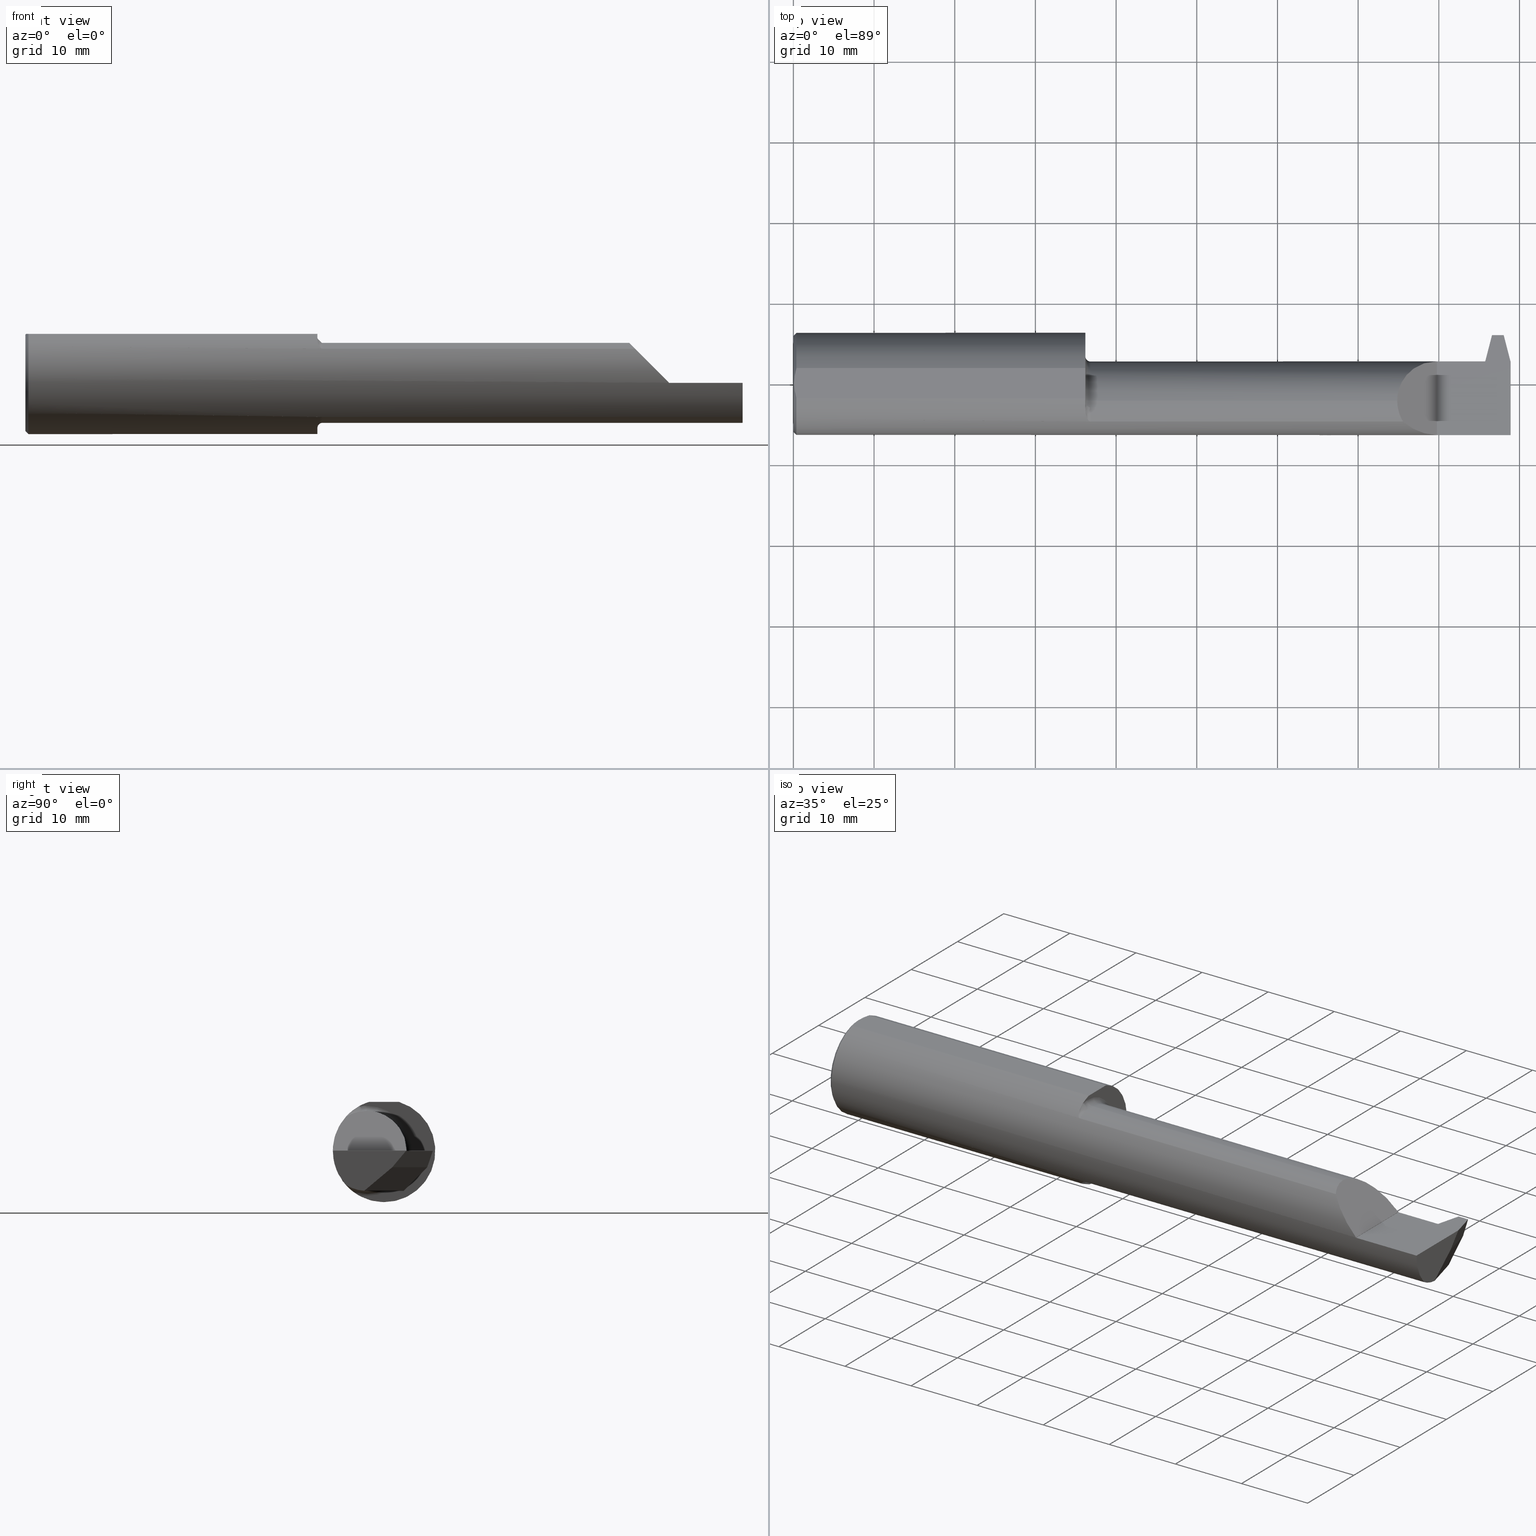
[diagram: canonical four-view strip — front | top / right | iso, engineering-drawing reading convention]
A machine part, canonical four-view strip (front | top / right | iso — engineering-drawing reading convention). The complete STEP part file that produces these views, byte-faithful:
ISO-10303-21;
HEADER;
FILE_DESCRIPTION (( 'STEP AP203' ),
    '1' );
FILE_NAME ('231084-FAT4902000-6.STEP',
    '2024-05-24T15:49:25',
    ( '' ),
    ( '' ),
    'SwSTEP 2.0',
    'SolidWorks 2022',
    '' );
FILE_SCHEMA (( 'CONFIG_CONTROL_DESIGN' ));
ENDSEC;

DATA;
#1 = VECTOR ( 'NONE', #208, 39.37007874015748143 ) ;
#2 = AXIS2_PLACEMENT_3D ( 'NONE', #893, #429, #71 ) ;
#3 = AXIS2_PLACEMENT_3D ( 'NONE', #116, #407, #283 ) ;
#4 = CARTESIAN_POINT ( 'NONE',  ( 3.139999999999999680, 0.2999999999999999889, -6.123031769111886291E-17 ) ) ;
#5 = CARTESIAN_POINT ( 'NONE',  ( 1.424999999999999600, -0.08485000000000002263, 0.000000000000000000 ) ) ;
#6 = EDGE_CURVE ( 'NONE', #963, #428, #90, .T. ) ;
#7 = DIRECTION ( 'NONE',  ( -1.000000000000000000, -0.000000000000000000, -0.000000000000000000 ) ) ;
#8 = DIRECTION ( 'NONE',  ( 0.000000000000000000, -0.7660444431189790127, -0.6427876096865380307 ) ) ;
#9 = B_SPLINE_CURVE_WITH_KNOTS ( 'NONE', 3,
 ( #76, #137, #531, #365 ),
 .UNSPECIFIED., .F., .F.,
 ( 4, 4 ),
 ( 0.007106848166584642593, 0.008972081732692481146 ),
 .UNSPECIFIED. ) ;
#10 = CARTESIAN_POINT ( 'NONE',  ( 1.449999999999999512, -0.08485000000000002263, 0.000000000000000000 ) ) ;
#11 = APPROVAL_ROLE ( '' ) ;
#12 = LINE ( 'NONE', #169, #293 ) ;
#13 = CARTESIAN_POINT ( 'NONE',  ( 1.449999999999999512, -0.08485000000000002263, 0.000000000000000000 ) ) ;
#14 = DIRECTION ( 'NONE',  ( 0.000000000000000000, 0.000000000000000000, -1.000000000000000000 ) ) ;
#15 = CARTESIAN_POINT ( 'NONE',  ( 3.500000000000000000, -0.08485000000000003650, -0.1950000000000000067 ) ) ;
#16 = DIRECTION ( 'NONE',  ( 1.000000000000000000, -8.537024980200913523E-16, -0.000000000000000000 ) ) ;
#17 = EDGE_CURVE ( 'NONE', #803, #428, #978, .T. ) ;
#18 = CARTESIAN_POINT ( 'NONE',  ( 3.344738196388982399, 0.1045796707247017010, -0.05362832365497319231 ) ) ;
#19 = CIRCLE ( 'NONE', #578, 0.1950000000000000067 ) ;
#20 = FACE_OUTER_BOUND ( 'NONE', #202, .T. ) ;
#21 = EDGE_CURVE ( 'NONE', #142, #130, #104, .T. ) ;
#22 = EDGE_LOOP ( 'NONE', ( #251, #173, #719, #321 ) ) ;
#23 = ORIENTED_EDGE ( 'NONE', *, *, #580, .T. ) ;
#24 = DIRECTION ( 'NONE',  ( -0.2503800040543470717, 0.9681476403781321682, 3.224476257003436399E-13 ) ) ;
#25 = LINE ( 'NONE', #333, #909 ) ;
#26 = LINE ( 'NONE', #15, #502 ) ;
#27 = ORIENTED_EDGE ( 'NONE', *, *, #492, .T. ) ;
#28 = DIRECTION ( 'NONE',  ( 1.000000000000000000, 0.000000000000000000, 0.000000000000000000 ) ) ;
#29 = CARTESIAN_POINT ( 'NONE',  ( 2.974762187678657632, -0.1862082793164402394, 0.1665878123213416218 ) ) ;
#30 = EDGE_CURVE ( 'NONE', #759, #302, #577, .T. ) ;
#31 = VERTEX_POINT ( 'NONE', #157 ) ;
#32 = CC_DESIGN_PERSON_AND_ORGANIZATION_ASSIGNMENT ( #204, #511, ( #246 ) ) ;
#33 = AXIS2_PLACEMENT_3D ( 'NONE', #676, #609, #74 ) ;
#34 = VECTOR ( 'NONE', #263, 39.37007874015748854 ) ;
#35 = DIRECTION ( 'NONE',  ( -0.000000000000000000, 1.000000000000000000, -0.000000000000000000 ) ) ;
#36 = CARTESIAN_POINT ( 'NONE',  ( 3.500000000000000000, -0.2498499999999999055, -6.123031769111886291E-17 ) ) ;
#37 = EDGE_CURVE ( 'NONE', #662, #560, #611, .T. ) ;
#38 = ORIENTED_EDGE ( 'NONE', *, *, #82, .T. ) ;
#39 = DIRECTION ( 'NONE',  ( -1.000000000000000000, -0.000000000000000000, -0.000000000000000000 ) ) ;
#40 = LINE ( 'NONE', #815, #230 ) ;
#41 = ORIENTED_EDGE ( 'NONE', *, *, #942, .F. ) ;
#42 = DIRECTION ( 'NONE',  ( 0.000000000000000000, -1.751184611323245683E-15, -1.000000000000000000 ) ) ;
#43 = ORIENTED_EDGE ( 'NONE', *, *, #467, .F. ) ;
#44 = ADVANCED_FACE ( 'NONE', ( #825 ), #320, .T. ) ;
#45 = LINE ( 'NONE', #439, #533 ) ;
#46 = CIRCLE ( 'NONE', #260, 0.02500000000000000486 ) ;
#47 = AXIS2_PLACEMENT_3D ( 'NONE', #4, #397, #833 ) ;
#48 = ORIENTED_EDGE ( 'NONE', *, *, #492, .F. ) ;
#49 = EDGE_CURVE ( 'NONE', #31, #971, #485, .T. ) ;
#50 = VERTEX_POINT ( 'NONE', #151 ) ;
#51 = CARTESIAN_POINT ( 'NONE',  ( 3.365128570000009756, 0.2106037909367887151, -0.07999999999999261868 ) ) ;
#52 = PERSON_AND_ORGANIZATION ( #264, #702 ) ;
#53 = VERTEX_POINT ( 'NONE', #762 ) ;
#54 = EDGE_LOOP ( 'NONE', ( #867, #115, #432, #316 ) ) ;
#55 = CARTESIAN_POINT ( 'NONE',  ( 3.375000000000000000, -0.08485000000000002263, 0.000000000000000000 ) ) ;
#56 = CARTESIAN_POINT ( 'NONE',  ( 3.369008559366369671, -0.03642100170330040548, -0.1888905294713815186 ) ) ;
#57 = DIRECTION ( 'NONE',  ( 0.000000000000000000, 0.000000000000000000, -1.000000000000000000 ) ) ;
#58 = ORIENTED_EDGE ( 'NONE', *, *, #872, .T. ) ;
#59 = ADVANCED_FACE ( 'NONE', ( #622 ), #974, .F. ) ;
#60 = VERTEX_POINT ( 'NONE', #695 ) ;
#61 = CARTESIAN_POINT ( 'NONE',  ( 1.424999999999999600, -0.1376885313855324422, -0.2089959966382204382 ) ) ;
#62 = EDGE_CURVE ( 'NONE', #75, #66, #765, .T. ) ;
#63 = CARTESIAN_POINT ( 'NONE',  ( 3.375000000000000000, -0.08485000000000003650, -0.1950000000000000067 ) ) ;
#64 = APPROVAL_PERSON_ORGANIZATION ( #52, #232, #894 ) ;
#65 = CALENDAR_DATE ( 2024, 24, 5 ) ;
#66 = VERTEX_POINT ( 'NONE', #228 ) ;
#67 = VECTOR ( 'NONE', #722, 39.37007874015748854 ) ;
#68 = EDGE_CURVE ( 'NONE', #543, #66, #618, .T. ) ;
#69 = VECTOR ( 'NONE', #730, 39.37007874015748143 ) ;
#70 = ORIENTED_EDGE ( 'NONE', *, *, #21, .F. ) ;
#71 = DIRECTION ( 'NONE',  ( 0.000000000000000000, 0.000000000000000000, 1.000000000000000000 ) ) ;
#72 =( BOUNDED_CURVE ( )  B_SPLINE_CURVE ( 3, ( #499, #929, #182, #29 ),
 .UNSPECIFIED., .F., .T. ) 
 B_SPLINE_CURVE_WITH_KNOTS ( ( 4, 4 ),
 ( 0.000000000000000000, 0.5466004890170823582 ),
 .UNSPECIFIED. ) 
 CURVE ( )  GEOMETRIC_REPRESENTATION_ITEM ( )  RATIONAL_B_SPLINE_CURVE ( ( 1.000000000000000000, 0.9752569136661357607, 0.9752569136661357607, 1.000000000000000000 ) ) 
 REPRESENTATION_ITEM ( '' )  );
#73 = DIRECTION ( 'NONE',  ( 1.000000000000000000, 0.000000000000000000, 0.000000000000000000 ) ) ;
#74 = DIRECTION ( 'NONE',  ( 0.000000000000000000, 0.000000000000000000, 1.000000000000000000 ) ) ;
#75 = VERTEX_POINT ( 'NONE', #685 ) ;
#76 = CARTESIAN_POINT ( 'NONE',  ( 0.004000000000000164882, -8.838795650998935986E-18, 0.2388499999999999790 ) ) ;
#77 = EDGE_CURVE ( 'NONE', #281, #801, #982, .T. ) ;
#78 = FACE_OUTER_BOUND ( 'NONE', #392, .T. ) ;
#79 = PERSON_AND_ORGANIZATION_ROLE ( 'classification_officer' ) ;
#80 = DIRECTION ( 'NONE',  ( 0.9474803064293678689, -0.2450350680735345343, 0.2055210070593990190 ) ) ;
#81 = PLANE ( 'NONE',  #47 ) ;
#82 = EDGE_CURVE ( 'NONE', #136, #281, #592, .T. ) ;
#83 = DIRECTION ( 'NONE',  ( -0.9474803064293734201, -0.2450350680735131625, 0.2055210070593990190 ) ) ;
#84 = FACE_OUTER_BOUND ( 'NONE', #514, .T. ) ;
#85 = EDGE_LOOP ( 'NONE', ( #858, #792, #594, #864, #109, #658, #396, #486, #23, #588, #269, #91, #500, #237 ) ) ;
#86 = AXIS2_PLACEMENT_3D ( 'NONE', #552, #905, #457 ) ;
#87 = AXIS2_PLACEMENT_3D ( 'NONE', #720, #715, #936 ) ;
#88 = CARTESIAN_POINT ( 'NONE',  ( 1.424999999999999600, -0.03642100170330050957, -0.1888905294713799921 ) ) ;
#89 = LINE ( 'NONE', #620, #351 ) ;
#90 = LINE ( 'NONE', #605, #164 ) ;
#91 = ORIENTED_EDGE ( 'NONE', *, *, #641, .T. ) ;
#92 = LINE ( 'NONE', #708, #811 ) ;
#93 = DIRECTION ( 'NONE',  ( -1.000000000000000000, -0.000000000000000000, -0.000000000000000000 ) ) ;
#94 = CARTESIAN_POINT ( 'NONE',  ( 0.01500000000000024925, 0.000000000000000000, 0.000000000000000000 ) ) ;
#95 = ADVANCED_FACE ( 'NONE', ( #84 ), #772, .T. ) ;
#96 = DIRECTION ( 'NONE',  ( 0.2503800040544125749, -0.9681476403781151818, 0.000000000000000000 ) ) ;
#97 = CARTESIAN_POINT ( 'NONE',  ( 3.375000000000000000, 0.1426008217676460466, -0.03867338342422671493 ) ) ;
#98 = EDGE_CURVE ( 'NONE', #278, #759, #367, .T. ) ;
#99 = PRODUCT_RELATED_PRODUCT_CATEGORY ( 'detail', '', ( #586 ) ) ;
#100 = DIRECTION ( 'NONE',  ( 0.000000000000000000, -1.000000000000000000, 0.000000000000000000 ) ) ;
#101 = VERTEX_POINT ( 'NONE', #236 ) ;
#102 = VERTEX_POINT ( 'NONE', #542 ) ;
#103 = DIRECTION ( 'NONE',  ( 0.000000000000000000, 0.000000000000000000, -1.000000000000000000 ) ) ;
#104 = CIRCLE ( 'NONE', #469, 0.2498499999999999888 ) ;
#105 = CARTESIAN_POINT ( 'NONE',  ( 3.139999999999999680, 0.1101453268670816166, 0.001349999999998470696 ) ) ;
#106 = CIRCLE ( 'NONE', #655, 0.2348499999999998089 ) ;
#107 = DIRECTION ( 'NONE',  ( -5.487493880857611755E-16, 0.6427876096865381417, -0.7660444431189791237 ) ) ;
#108 = CARTESIAN_POINT ( 'NONE',  ( 3.344999999999999751, 0.2906037909367804595, 0.000000000000000000 ) ) ;
#109 = ORIENTED_EDGE ( 'NONE', *, *, #880, .T. ) ;
#110 = ORIENTED_EDGE ( 'NONE', *, *, #344, .T. ) ;
#111 = CARTESIAN_POINT ( 'NONE',  ( 2.946349999999998914, -0.08485000000000002263, 0.1950000000000000067 ) ) ;
#112 = EDGE_CURVE ( 'NONE', #648, #966, #549, .T. ) ;
#113 = DIRECTION ( 'NONE',  ( 0.7071067811865490160, 8.659560562354911904E-17, 0.7071067811865459074 ) ) ;
#114 = DIRECTION ( 'NONE',  ( 0.000000000000000000, -0.7071067811865435759, -0.7071067811865514585 ) ) ;
#115 = ORIENTED_EDGE ( 'NONE', *, *, #696, .T. ) ;
#116 = CARTESIAN_POINT ( 'NONE',  ( 0.01500000000000024925, 0.000000000000000000, 0.000000000000000000 ) ) ;
#117 = EDGE_CURVE ( 'NONE', #441, #343, #12, .T. ) ;
#118 = CARTESIAN_POINT ( 'NONE',  ( 1.437118484253500972, -0.1780926133871663097, 0.1752686114729513633 ) ) ;
#119 = CARTESIAN_POINT ( 'NONE',  ( 2.399999999999999911, -0.1862082793164407946, 0.1665878123213411499 ) ) ;
#120 = ORIENTED_EDGE ( 'NONE', *, *, #556, .T. ) ;
#121 = AXIS2_PLACEMENT_3D ( 'NONE', #108, #791, #114 ) ;
#122 = AXIS2_PLACEMENT_3D ( 'NONE', #348, #562, #943 ) ;
#123 = FACE_OUTER_BOUND ( 'NONE', #841, .T. ) ;
#124 = DIRECTION ( 'NONE',  ( 0.000000000000000000, 0.000000000000000000, -1.000000000000000000 ) ) ;
#125 = ORIENTED_EDGE ( 'NONE', *, *, #6, .T. ) ;
#126 = CARTESIAN_POINT ( 'NONE',  ( 1.442133466839169431, -0.1833506539713361250, 0.1697341124089706277 ) ) ;
#127 = ORIENTED_EDGE ( 'NONE', *, *, #481, .T. ) ;
#128 = CARTESIAN_POINT ( 'NONE',  ( 1.424999999999999600, -0.1250709781968178946, -0.2162921009026707309 ) ) ;
#129 = APPROVAL ( #445, 'UNSPECIFIED' ) ;
#130 = VERTEX_POINT ( 'NONE', #570 ) ;
#131 = EDGE_LOOP ( 'NONE', ( #871, #218, #277, #349, #896, #752, #512, #810 ) ) ;
#132 = LINE ( 'NONE', #744, #515 ) ;
#133 = AXIS2_PLACEMENT_3D ( 'NONE', #901, #535, #529 ) ;
#134 = VECTOR ( 'NONE', #789, 39.37007874015748143 ) ;
#135 = ORIENTED_EDGE ( 'NONE', *, *, #741, .T. ) ;
#136 = VERTEX_POINT ( 'NONE', #36 ) ;
#137 = CARTESIAN_POINT ( 'NONE',  ( 0.004000000000000163147, -0.02498450228869498330, 0.2388499999999999790 ) ) ;
#138 = CARTESIAN_POINT ( 'NONE',  ( 3.500000000000000000, 0.000000000000000000, 0.000000000000000000 ) ) ;
#139 = EDGE_CURVE ( 'NONE', #426, #75, #866, .T. ) ;
#140 = PERSON_AND_ORGANIZATION ( #264, #702 ) ;
#141 = ORIENTED_EDGE ( 'NONE', *, *, #615, .T. ) ;
#142 = VERTEX_POINT ( 'NONE', #334 ) ;
#143 = CARTESIAN_POINT ( 'NONE',  ( 1.424999999999999600, -0.08485000000000002263, 0.000000000000000000 ) ) ;
#144 = CARTESIAN_POINT ( 'NONE',  ( 3.376000360214735707, 0.1101499999999999563, 0.000000000000000000 ) ) ;
#145 = EDGE_CURVE ( 'NONE', #971, #53, #46, .T. ) ;
#146 = ORIENTED_EDGE ( 'NONE', *, *, #68, .T. ) ;
#147 = ORIENTED_EDGE ( 'NONE', *, *, #206, .T. ) ;
#148 = CARTESIAN_POINT ( 'NONE',  ( 3.369008559366369671, 3.895685540389045798, 3.110538619748064892 ) ) ;
#149 = DIRECTION ( 'NONE',  ( -0.000000000000000000, 0.000000000000000000, -1.000000000000000000 ) ) ;
#150 = APPROVAL_PERSON_ORGANIZATION ( #846, #244, #11 ) ;
#151 = CARTESIAN_POINT ( 'NONE',  ( 0.000000000000000000, 0.000000000000000000, -0.2348499999999998089 ) ) ;
#152 = VECTOR ( 'NONE', #406, 39.37007874015748143 ) ;
#153 = ORIENTED_EDGE ( 'NONE', *, *, #556, .F. ) ;
#154 = LINE ( 'NONE', #892, #310 ) ;
#155 = CARTESIAN_POINT ( 'NONE',  ( 2.974762187678657632, -0.1862082793164402394, 0.1665878123213416218 ) ) ;
#156 = CALENDAR_DATE ( 2024, 24, 5 ) ;
#157 = CARTESIAN_POINT ( 'NONE',  ( 1.449999999999999512, -0.08484999999999999487, -0.1950000000000000067 ) ) ;
#158 = EDGE_CURVE ( 'NONE', #331, #857, #638, .T. ) ;
#159 = DIRECTION ( 'NONE',  ( 0.000000000000000000, -1.000000000000000000, 0.000000000000000000 ) ) ;
#160 = CYLINDRICAL_SURFACE ( 'NONE', #690, 0.1950000000000000067 ) ;
#161 = DIRECTION ( 'NONE',  ( 1.000000000000000000, 0.000000000000000000, 0.000000000000000000 ) ) ;
#162 = CARTESIAN_POINT ( 'NONE',  ( 3.375000000000000000, 0.09367683510634322586, -0.07844213884713072127 ) ) ;
#163 = CARTESIAN_POINT ( 'NONE',  ( 1.424999999999999600, 0.000000000000000000, 0.000000000000000000 ) ) ;
#164 = VECTOR ( 'NONE', #223, 39.37007874015748854 ) ;
#165 = AXIS2_PLACEMENT_3D ( 'NONE', #726, #107, #267 ) ;
#166 = DIRECTION ( 'NONE',  ( 1.000000000000000000, 0.000000000000000000, 0.000000000000000000 ) ) ;
#167 = CARTESIAN_POINT ( 'NONE',  ( 3.339527195321079223, 0.09367683510634323973, -0.07844213884713070739 ) ) ;
#168 = ADVANCED_FACE ( 'NONE', ( #563 ), #399, .T. ) ;
#169 = CARTESIAN_POINT ( 'NONE',  ( 3.356000360214735689, 0.1101499999999999702, 0.000000000000000000 ) ) ;
#170 = CARTESIAN_POINT ( 'NONE',  ( 3.079423879288073262, 1.666229512840949667, -0.07999999999943925577 ) ) ;
#171 = FACE_OUTER_BOUND ( 'NONE', #787, .T. ) ;
#172 = DIRECTION ( 'NONE',  ( -1.000000000000000000, -0.000000000000000000, -0.000000000000000000 ) ) ;
#173 = ORIENTED_EDGE ( 'NONE', *, *, #68, .F. ) ;
#174 = CARTESIAN_POINT ( 'NONE',  ( 1.424999999999999600, 0.1000000000000000056, 0.2388499999999999790 ) ) ;
#175 = VERTEX_POINT ( 'NONE', #718 ) ;
#176 = VERTEX_POINT ( 'NONE', #572 ) ;
#177 = VECTOR ( 'NONE', #471, 39.37007874015748854 ) ;
#178 = EDGE_CURVE ( 'NONE', #786, #814, #794, .T. ) ;
#179 = VECTOR ( 'NONE', #483, 39.37007874015748143 ) ;
#180 = VECTOR ( 'NONE', #697, 39.37007874015748854 ) ;
#181 = CARTESIAN_POINT ( 'NONE',  ( 3.500000000000000000, -0.04370198515462977301, -0.1950000000000000067 ) ) ;
#182 = CARTESIAN_POINT ( 'NONE',  ( 2.956061009574508791, -0.1554718819623024939, 0.1852889904254893805 ) ) ;
#183 = ORIENTED_EDGE ( 'NONE', *, *, #77, .T. ) ;
#184 = ADVANCED_FACE ( 'NONE', ( #414 ), #855, .T. ) ;
#185 = CARTESIAN_POINT ( 'NONE',  ( 3.375000000000000000, -0.03642100170329775483, -0.1888905294713793259 ) ) ;
#186 = CARTESIAN_POINT ( 'NONE',  ( 3.500000000000000000, 0.07331916529803116089, 0.2388499999999999790 ) ) ;
#187 = LINE ( 'NONE', #258, #67 ) ;
#188 = ORIENTED_EDGE ( 'NONE', *, *, #247, .T. ) ;
#189 = FACE_OUTER_BOUND ( 'NONE', #288, .T. ) ;
#190 = LINE ( 'NONE', #950, #628 ) ;
#191 = DIRECTION ( 'NONE',  ( 0.000000000000000000, 0.000000000000000000, -1.000000000000000000 ) ) ;
#192 = EDGE_LOOP ( 'NONE', ( #935, #505, #644, #402 ) ) ;
#193 = LOCAL_TIME ( 8, 49, 25.00000000000000000, #328 ) ;
#194 = AXIS2_PLACEMENT_3D ( 'NONE', #338, #417, #490 ) ;
#195 = CIRCLE ( 'NONE', #2, 0.1950000000000000344 ) ;
#196 = CARTESIAN_POINT ( 'NONE',  ( 0.000000000000000000, 0.000000000000000000, 0.000000000000000000 ) ) ;
#197 = EDGE_CURVE ( 'NONE', #953, #857, #72, .T. ) ;
#198 = ORIENTED_EDGE ( 'NONE', *, *, #461, .T. ) ;
#199 = EDGE_CURVE ( 'NONE', #575, #648, #187, .T. ) ;
#200 = CARTESIAN_POINT ( 'NONE',  ( 0.000000000000000000, 0.000000000000000000, 0.000000000000000000 ) ) ;
#201 = ORIENTED_EDGE ( 'NONE', *, *, #799, .T. ) ;
#202 = EDGE_LOOP ( 'NONE', ( #215, #254, #930, #962 ) ) ;
#203 = DIRECTION ( 'NONE',  ( -1.000000000000000000, -0.000000000000000000, -0.000000000000000000 ) ) ;
#204 = PERSON_AND_ORGANIZATION ( #264, #702 ) ;
#205 = ORIENTED_EDGE ( 'NONE', *, *, #405, .T. ) ;
#206 = EDGE_CURVE ( 'NONE', #130, #526, #795, .T. ) ;
#207 = EDGE_LOOP ( 'NONE', ( #958, #884, #635, #330, #606 ) ) ;
#208 = DIRECTION ( 'NONE',  ( 1.000000000000000000, 0.000000000000000000, 0.000000000000000000 ) ) ;
#209 = CARTESIAN_POINT ( 'NONE',  ( 3.139999999999999680, 0.2999999999999999889, -6.123031769111886291E-17 ) ) ;
#210 = AXIS2_PLACEMENT_3D ( 'NONE', #346, #516, #727 ) ;
#211 = CC_DESIGN_PERSON_AND_ORGANIZATION_ASSIGNMENT ( #140, #458, ( #586 ) ) ;
#212 =( LENGTH_UNIT ( ) NAMED_UNIT ( * ) SI_UNIT ( $, .METRE. ) );
#213 = EDGE_LOOP ( 'NONE', ( #571, #364, #731, #941 ) ) ;
#214 = ADVANCED_FACE ( 'NONE', ( #324 ), #926, .T. ) ;
#215 = ORIENTED_EDGE ( 'NONE', *, *, #139, .F. ) ;
#216 = CARTESIAN_POINT ( 'NONE',  ( 1.443416617075089947, -0.1842851675631635711, -0.1687160800144226758 ) ) ;
#217 = CARTESIAN_POINT ( 'NONE',  ( 2.946349999999999802, 0.02875230614401374021, 0.1949999999999999789 ) ) ;
#218 = ORIENTED_EDGE ( 'NONE', *, *, #868, .F. ) ;
#219 = ORIENTED_EDGE ( 'NONE', *, *, #668, .F. ) ;
#220 = DIRECTION ( 'NONE',  ( -1.000000000000000000, -0.000000000000000000, -0.000000000000000000 ) ) ;
#221 = DIRECTION ( 'NONE',  ( -1.000000000000000000, 0.000000000000000000, 0.000000000000000000 ) ) ;
#222 = DATE_AND_TIME ( #906, #576 ) ;
#223 = DIRECTION ( 'NONE',  ( 0.000000000000000000, -0.7660444431189790127, -0.6427876096865380307 ) ) ;
#224 = ORIENTED_EDGE ( 'NONE', *, *, #788, .F. ) ;
#225 = DIRECTION ( 'NONE',  ( 1.000000000000000000, -0.000000000000000000, -0.000000000000000000 ) ) ;
#226 = DIRECTION ( 'NONE',  ( -0.7071067811865491270, 0.000000000000000000, -0.7071067811865459074 ) ) ;
#227 = EDGE_CURVE ( 'NONE', #575, #803, #26, .T. ) ;
#228 = CARTESIAN_POINT ( 'NONE',  ( 3.389008559366369688, -0.04370198515463021710, -0.1950000000000005063 ) ) ;
#229 = VECTOR ( 'NONE', #253, 39.37007874015748854 ) ;
#230 = VECTOR ( 'NONE', #291, 39.37007874015748143 ) ;
#231 = CARTESIAN_POINT ( 'NONE',  ( 1.424999999999999600, 0.3101499999999999813, 0.000000000000000000 ) ) ;
#232 = APPROVAL ( #900, 'UNSPECIFIED' ) ;
#233 = DIRECTION ( 'NONE',  ( 0.000000000000000000, -0.7660444431189790127, -0.6427876096865380307 ) ) ;
#234 = DIRECTION ( 'NONE',  ( -0.2503800040544661432, -0.9681476403781013040, 2.767176021110954448E-16 ) ) ;
#235 = ORIENTED_EDGE ( 'NONE', *, *, #425, .F. ) ;
#236 = CARTESIAN_POINT ( 'NONE',  ( 3.376000360214735707, 0.1101499999999999563, 0.000000000000000000 ) ) ;
#237 = ORIENTED_EDGE ( 'NONE', *, *, #322, .T. ) ;
#238 = CARTESIAN_POINT ( 'NONE',  ( 3.375000000000000000, -0.04370198515462996730, -0.1950000000000000344 ) ) ;
#239 = CARTESIAN_POINT ( 'NONE',  ( 3.409103411012277540, 0.2381499999999572847, -6.123031769111886291E-17 ) ) ;
#240 = DATE_AND_TIME ( #470, #193 ) ;
#241 = DIRECTION ( 'NONE',  ( -1.000000000000000000, -0.000000000000000000, -0.000000000000000000 ) ) ;
#242 = AXIS2_PLACEMENT_3D ( 'NONE', #675, #604, #73 ) ;
#243 = EDGE_CURVE ( 'NONE', #543, #426, #554, .T. ) ;
#244 = APPROVAL ( #850, 'UNSPECIFIED' ) ;
#245 = CIRCLE ( 'NONE', #800, 0.2348499999999998089 ) ;
#246 = PRODUCT_DEFINITION_FORMATION_WITH_SPECIFIED_SOURCE ( 'ANY', '', #586, .NOT_KNOWN. ) ;
#247 = EDGE_CURVE ( 'NONE', #31, #278, #640, .T. ) ;
#248 = CARTESIAN_POINT ( 'NONE',  ( 3.365128569999999542, 0.1730363691085396172, -0.1891037151198298183 ) ) ;
#249 = DIRECTION ( 'NONE',  ( -0.9277270166603085455, 0.2399265199904110635, -0.2859332921571997588 ) ) ;
#250 = ORIENTED_EDGE ( 'NONE', *, *, #319, .F. ) ;
#251 = ORIENTED_EDGE ( 'NONE', *, *, #62, .T. ) ;
#252 = DIRECTION ( 'NONE',  ( -1.000000000000000000, -0.000000000000000000, -0.000000000000000000 ) ) ;
#253 = DIRECTION ( 'NONE',  ( 0.2503800040543591177, 0.9681476403781290596, 3.700214652322852610E-13 ) ) ;
#254 = ORIENTED_EDGE ( 'NONE', *, *, #696, .F. ) ;
#255 = EDGE_LOOP ( 'NONE', ( #127, #700, #747, #632 ) ) ;
#256 = CARTESIAN_POINT ( 'NONE',  ( 3.500000000000000000, 0.2999999999999999889, -6.123031769111886291E-17 ) ) ;
#257 = CARTESIAN_POINT ( 'NONE',  ( 1.424999999999999600, -0.1250709781968178946, 0.2162921009026707309 ) ) ;
#258 = CARTESIAN_POINT ( 'NONE',  ( 3.438605064927497512, 0.1403272557387241215, -0.1950000000000000622 ) ) ;
#259 = ADVANCED_FACE ( 'NONE', ( #20 ), #329, .F. ) ;
#260 = AXIS2_PLACEMENT_3D ( 'NONE', #870, #630, #862 ) ;
#261 = CONICAL_SURFACE ( 'NONE', #643, 0.2498499999999999888, 0.7853981633974460586 ) ;
#262 = AXIS2_PLACEMENT_3D ( 'NONE', #585, #226, #453 ) ;
#263 = DIRECTION ( 'NONE',  ( 0.7071067811865490160, 0.000000000000000000, -0.7071067811865459074 ) ) ;
#264 = PERSON ( 'UNSPECIFIED', 'UNSPECIFIED', 'UNSPECIFIED', ('UNSPECIFIED'), ('UNSPECIFIED'), ('UNSPECIFIED') ) ;
#265 = DIRECTION ( 'NONE',  ( -0.2945363905205002908, 0.000000000000000000, 0.9556402642517503043 ) ) ;
#266 = EDGE_LOOP ( 'NONE', ( #581, #125, #369 ) ) ;
#267 = DIRECTION ( 'NONE',  ( 0.000000000000000000, 0.7660444431189790127, 0.6427876096865380307 ) ) ;
#268 = DIRECTION ( 'NONE',  ( 1.000000000000000000, 0.000000000000000000, 0.000000000000000000 ) ) ;
#269 = ORIENTED_EDGE ( 'NONE', *, *, #21, .T. ) ;
#270 = EDGE_CURVE ( 'NONE', #302, #662, #558, .T. ) ;
#271 = CARTESIAN_POINT ( 'NONE',  ( 1.448136090905396189, -0.1862082793164408778, 0.1665878123213412332 ) ) ;
#272 = ORIENTED_EDGE ( 'NONE', *, *, #6, .F. ) ;
#273 = CC_DESIGN_DATE_AND_TIME_ASSIGNMENT ( #240, #548, ( #400 ) ) ;
#274 = ADVANCED_BREP_SHAPE_REPRESENTATION ( '231084-FAT4902000-6', ( #561, #242 ), #725 ) ;
#275 = VECTOR ( 'NONE', #16, 39.37007874015748143 ) ;
#276 = CARTESIAN_POINT ( 'NONE',  ( 1.449999999999999512, -0.1862082793164407946, 0.1665878123213411499 ) ) ;
#277 = ORIENTED_EDGE ( 'NONE', *, *, #422, .F. ) ;
#278 = VERTEX_POINT ( 'NONE', #783 ) ;
#279 = CARTESIAN_POINT ( 'NONE',  ( 1.449999999999999512, -0.1862082793164407946, -0.1665878123213411499 ) ) ;
#280 = DATE_TIME_ROLE ( 'creation_date' ) ;
#281 = VERTEX_POINT ( 'NONE', #409 ) ;
#282 = ADVANCED_FACE ( 'NONE', ( #934 ), #972, .T. ) ;
#283 = DIRECTION ( 'NONE',  ( 0.000000000000000000, 0.000000000000000000, -1.000000000000000000 ) ) ;
#284 = ORIENTED_EDGE ( 'NONE', *, *, #317, .T. ) ;
#285 = DIRECTION ( 'NONE',  ( 1.000000000000000000, 0.000000000000000000, 0.000000000000000000 ) ) ;
#286 = DIRECTION ( 'NONE',  ( 0.9277270166603228674, 0.2399265199903882206, -0.2859332921571727248 ) ) ;
#287 = APPLICATION_PROTOCOL_DEFINITION ( 'international standard', 'config_control_design', 1994, #557 ) ;
#288 = EDGE_LOOP ( 'NONE', ( #43, #852, #755, #456 ) ) ;
#289 = EDGE_CURVE ( 'NONE', #821, #796, #734, .T. ) ;
#290 = ORIENTED_EDGE ( 'NONE', *, *, #319, .T. ) ;
#291 = DIRECTION ( 'NONE',  ( -1.000000000000000000, -0.000000000000000000, -0.000000000000000000 ) ) ;
#292 = DIRECTION ( 'NONE',  ( -0.1571540165094709174, 0.2029672248372564880, 0.9664920696709329295 ) ) ;
#293 = VECTOR ( 'NONE', #777, 39.37007874015748854 ) ;
#294 = VECTOR ( 'NONE', #869, 39.37007874015748143 ) ;
#295 = DATE_AND_TIME ( #156, #501 ) ;
#296 = ORIENTED_EDGE ( 'NONE', *, *, #868, .T. ) ;
#297 = ORIENTED_EDGE ( 'NONE', *, *, #625, .T. ) ;
#298 = CARTESIAN_POINT ( 'NONE',  ( 3.500000000000000000, -0.09664390695084383587, -0.1946430162087374738 ) ) ;
#299 = CARTESIAN_POINT ( 'NONE',  ( 2.946349999999998914, -0.08485000000000002263, 0.1950000000000000067 ) ) ;
#300 = DATE_AND_TIME ( #65, #484 ) ;
#301 = DIRECTION ( 'NONE',  ( -0.000000000000000000, 1.000000000000000000, -2.833219857418689288E-16 ) ) ;
#302 = VERTEX_POINT ( 'NONE', #829 ) ;
#303 = FACE_OUTER_BOUND ( 'NONE', #213, .T. ) ;
#304 = LINE ( 'NONE', #816, #924 ) ;
#305 = APPROVAL_ROLE ( '' ) ;
#306 = DIRECTION ( 'NONE',  ( 1.000000000000000000, -0.000000000000000000, -0.000000000000000000 ) ) ;
#307 = EDGE_LOOP ( 'NONE', ( #954, #403, #895, #448, #183, #198 ) ) ;
#308 = CARTESIAN_POINT ( 'NONE',  ( 1.437135037345900868, -0.1781181496382315266, -0.1752430622336075550 ) ) ;
#309 = CYLINDRICAL_SURFACE ( 'NONE', #863, 0.1950000000000000067 ) ;
#310 = VECTOR ( 'NONE', #285, 39.37007874015748143 ) ;
#311 = CARTESIAN_POINT ( 'NONE',  ( 2.399999999999999911, -0.1862082793164407946, -0.1665878123213411499 ) ) ;
#312 = AXIS2_PLACEMENT_3D ( 'NONE', #911, #83, #693 ) ;
#313 = AXIS2_PLACEMENT_3D ( 'NONE', #209, #960, #362 ) ;
#314 = FACE_OUTER_BOUND ( 'NONE', #945, .T. ) ;
#315 = DIRECTION ( 'NONE',  ( 0.000000000000000000, 0.000000000000000000, -1.000000000000000000 ) ) ;
#316 = ORIENTED_EDGE ( 'NONE', *, *, #178, .F. ) ;
#317 = EDGE_CURVE ( 'NONE', #175, #343, #154, .T. ) ;
#318 = PLANE ( 'NONE',  #952 ) ;
#319 = EDGE_CURVE ( 'NONE', #526, #176, #9, .T. ) ;
#320 = CYLINDRICAL_SURFACE ( 'NONE', #33, 0.1950000000000000067 ) ;
#321 = ORIENTED_EDGE ( 'NONE', *, *, #139, .T. ) ;
#322 = EDGE_CURVE ( 'NONE', #759, #801, #639, .T. ) ;
#323 = FACE_OUTER_BOUND ( 'NONE', #255, .T. ) ;
#324 = FACE_OUTER_BOUND ( 'NONE', #22, .T. ) ;
#325 = VECTOR ( 'NONE', #835, 39.37007874015748854 ) ;
#326 = AXIS2_PLACEMENT_3D ( 'NONE', #248, #541, #838 ) ;
#327 = LINE ( 'NONE', #381, #152 ) ;
#328 = COORDINATED_UNIVERSAL_TIME_OFFSET ( 8, 0, .BEHIND. ) ;
#329 = PLANE ( 'NONE',  #121 ) ;
#330 = ORIENTED_EDGE ( 'NONE', *, *, #481, .F. ) ;
#331 = VERTEX_POINT ( 'NONE', #948 ) ;
#332 = EDGE_CURVE ( 'NONE', #75, #648, #372, .T. ) ;
#333 = CARTESIAN_POINT ( 'NONE',  ( 1.424999999999999600, -0.08485000000000002263, 0.1950000000000000067 ) ) ;
#334 = CARTESIAN_POINT ( 'NONE',  ( 0.01500000000000024925, 0.000000000000000000, -0.2498499999999999888 ) ) ;
#335 = ORIENTED_EDGE ( 'NONE', *, *, #641, .F. ) ;
#336 =( BOUNDED_CURVE ( )  B_SPLINE_CURVE ( 3, ( #603, #823, #607, #510 ),
 .UNSPECIFIED., .F., .T. ) 
 B_SPLINE_CURVE_WITH_KNOTS ( ( 4, 4 ),
 ( 0.6981317007977292377, 0.7586502095448539595 ),
 .UNSPECIFIED. ) 
 CURVE ( )  GEOMETRIC_REPRESENTATION_ITEM ( )  RATIONAL_B_SPLINE_CURVE ( ( 1.000000000000000000, 0.9996948157954445024, 0.9996948157954445024, 1.000000000000000000 ) ) 
 REPRESENTATION_ITEM ( '' )  );
#337 = CARTESIAN_POINT ( 'NONE',  ( 3.450171339358601319, 0.09560379093678254836, -0.1950000000000000344 ) ) ;
#338 = CARTESIAN_POINT ( 'NONE',  ( 3.375000000000000000, 0.1101499999999999840, 0.000000000000000000 ) ) ;
#339 = VECTOR ( 'NONE', #268, 39.37007874015748143 ) ;
#340 = AXIS2_PLACEMENT_3D ( 'NONE', #692, #914, #540 ) ;
#341 = LINE ( 'NONE', #504, #69 ) ;
#342 = CARTESIAN_POINT ( 'NONE',  ( 0.01500000000000024925, 0.07331916529803100824, 0.2388500000000000345 ) ) ;
#343 = VERTEX_POINT ( 'NONE', #979 ) ;
#344 = EDGE_CURVE ( 'NONE', #347, #820, #610, .T. ) ;
#345 = CARTESIAN_POINT ( 'NONE',  ( 1.426293471060600559, -0.1495312910450007360, 0.2006610765018841391 ) ) ;
#346 = CARTESIAN_POINT ( 'NONE',  ( 3.375000000000000000, -0.08485000000000002263, 0.000000000000000000 ) ) ;
#347 = VERTEX_POINT ( 'NONE', #298 ) ;
#348 = CARTESIAN_POINT ( 'NONE',  ( 1.449999999999999512, -0.08485000000000002263, 0.000000000000000000 ) ) ;
#349 = ORIENTED_EDGE ( 'NONE', *, *, #317, .F. ) ;
#350 = AXIS2_PLACEMENT_3D ( 'NONE', #743, #760, #749 ) ;
#351 = VECTOR ( 'NONE', #478, 39.37007874015748143 ) ;
#352 = CARTESIAN_POINT ( 'NONE',  ( 3.375000000000000000, 0.09276125059353784730, -0.08049374921445459630 ) ) ;
#353 = PLANE ( 'NONE',  #262 ) ;
#354 = EDGE_LOOP ( 'NONE', ( #781, #141, #446, #599, #742, #623, #284, #706, #583, #975, #748, #877, #442 ) ) ;
#355 = ORIENTED_EDGE ( 'NONE', *, *, #62, .F. ) ;
#356 = DIRECTION ( 'NONE',  ( 0.000000000000000000, 0.000000000000000000, -1.000000000000000000 ) ) ;
#357 = ADVANCED_FACE ( 'NONE', ( #303 ), #937, .F. ) ;
#358 = PERSON_AND_ORGANIZATION ( #264, #702 ) ;
#359 = ORIENTED_EDGE ( 'NONE', *, *, #37, .T. ) ;
#360 = ORIENTED_EDGE ( 'NONE', *, *, #508, .F. ) ;
#361 = CARTESIAN_POINT ( 'NONE',  ( 1.442154182526137918, -0.1833665275214916013, -0.1697169404947844740 ) ) ;
#362 = DIRECTION ( 'NONE',  ( -1.000000000000000000, 0.000000000000000000, 0.000000000000000000 ) ) ;
#363 = EDGE_LOOP ( 'NONE', ( #359, #205, #27, #465, #436, #631 ) ) ;
#364 = ORIENTED_EDGE ( 'NONE', *, *, #145, .T. ) ;
#365 = CARTESIAN_POINT ( 'NONE',  ( 0.01500000000000021108, -0.07331916529803102212, 0.2388499999999999790 ) ) ;
#366 = PLANE ( 'NONE',  #671 ) ;
#367 = CIRCLE ( 'NONE', #703, 0.2200000000000000011 ) ;
#368 = VECTOR ( 'NONE', #96, 39.37007874015748854 ) ;
#369 = ORIENTED_EDGE ( 'NONE', *, *, #17, .F. ) ;
#370 = ADVANCED_FACE ( 'NONE', ( #443 ), #910, .T. ) ;
#371 = ORIENTED_EDGE ( 'NONE', *, *, #885, .T. ) ;
#372 = LINE ( 'NONE', #887, #1 ) ;
#373 = LINE ( 'NONE', #144, #386 ) ;
#374 = CC_DESIGN_PERSON_AND_ORGANIZATION_ASSIGNMENT ( #598, #680, ( #629 ) ) ;
#375 = PERSON_AND_ORGANIZATION ( #264, #702 ) ;
#376 = CARTESIAN_POINT ( 'NONE',  ( 3.412206822024559383, 0.2501499999999999835, 0.000000000000000000 ) ) ;
#377 = CARTESIAN_POINT ( 'NONE',  ( 1.438813695058259734, -0.1803944576976549696, -0.1728909059399327819 ) ) ;
#378 = DIRECTION ( 'NONE',  ( 0.000000000000000000, -0.2055210070593990190, -0.9786527043120508695 ) ) ;
#379 = CARTESIAN_POINT ( 'NONE',  ( 3.389008559366369688, 3.895685540389045798, 3.110538619748064892 ) ) ;
#380 = APPLICATION_CONTEXT ( 'configuration controlled 3d designs of mechanical parts and assemblies' ) ;
#381 = CARTESIAN_POINT ( 'NONE',  ( 3.376000360214735707, 0.09334967799373224129, -0.07999999999997681188 ) ) ;
#382 = CARTESIAN_POINT ( 'NONE',  ( 1.424999999999999600, -0.08485000000000002263, 0.000000000000000000 ) ) ;
#383 = VECTOR ( 'NONE', #964, 39.37007874015748854 ) ;
#384 = EDGE_CURVE ( 'NONE', #963, #803, #768, .T. ) ;
#385 = CARTESIAN_POINT ( 'NONE',  ( 3.375000000000000000, 0.1101499999999999840, 0.000000000000000000 ) ) ;
#386 = VECTOR ( 'NONE', #292, 39.37007874015748854 ) ;
#387 = CIRCLE ( 'NONE', #3, 0.2498499999999999888 ) ;
#388 = EDGE_LOOP ( 'NONE', ( #371, #530 ) ) ;
#389 = CARTESIAN_POINT ( 'NONE',  ( 3.139999999999999680, -0.2498499999999999610, -6.123031769111885058E-17 ) ) ;
#390 = EDGE_CURVE ( 'NONE', #136, #817, #40, .T. ) ;
#391 = CARTESIAN_POINT ( 'NONE',  ( 1.449999999999999512, -0.08485000000000002263, 0.000000000000000000 ) ) ;
#392 = EDGE_LOOP ( 'NONE', ( #651, #886, #587, #70, #848 ) ) ;
#393 = CARTESIAN_POINT ( 'NONE',  ( 3.432301163597319960, 0.1756803149080581328, -0.1814251389688738281 ) ) ;
#394 = DIRECTION ( 'NONE',  ( -8.354782583653156652E-16, -0.9786527043120508695, 0.2055210070593990190 ) ) ;
#395 = CARTESIAN_POINT ( 'NONE',  ( 0.004000000000000164882, -8.838795650998935986E-18, 0.2388499999999999790 ) ) ;
#396 = ORIENTED_EDGE ( 'NONE', *, *, #553, .T. ) ;
#397 = DIRECTION ( 'NONE',  ( -1.000000000000000000, 0.000000000000000000, -0.000000000000000000 ) ) ;
#398 = CARTESIAN_POINT ( 'NONE',  ( 0.01500000000000024925, 0.000000000000000000, 0.000000000000000000 ) ) ;
#399 = PLANE ( 'NONE',  #401 ) ;
#400 = SECURITY_CLASSIFICATION ( '', '', #463 ) ;
#401 = AXIS2_PLACEMENT_3D ( 'NONE', #494, #633, #191 ) ;
#402 = ORIENTED_EDGE ( 'NONE', *, *, #158, .T. ) ;
#403 = ORIENTED_EDGE ( 'NONE', *, *, #227, .F. ) ;
#404 = CIRCLE ( 'NONE', #736, 0.1950000000000000067 ) ;
#405 = EDGE_CURVE ( 'NONE', #560, #53, #614, .T. ) ;
#406 = DIRECTION ( 'NONE',  ( 1.000000000000000000, -1.218929979112562121E-15, -1.739145147128055983E-15 ) ) ;
#407 = DIRECTION ( 'NONE',  ( 1.000000000000000000, -0.000000000000000000, -0.000000000000000000 ) ) ;
#408 = DIRECTION ( 'NONE',  ( 1.000000000000000000, 0.000000000000000000, 0.000000000000000000 ) ) ;
#409 = CARTESIAN_POINT ( 'NONE',  ( 3.500000000000000000, -0.1862082793164407113, -0.1665878123213411777 ) ) ;
#410 = CC_DESIGN_DATE_AND_TIME_ASSIGNMENT ( #300, #280, ( #629 ) ) ;
#411 = ORIENTED_EDGE ( 'NONE', *, *, #467, .T. ) ;
#412 = FACE_OUTER_BOUND ( 'NONE', #437, .T. ) ;
#413 = DIRECTION ( 'NONE',  ( -1.000000000000000000, -0.000000000000000000, -0.000000000000000000 ) ) ;
#414 = FACE_OUTER_BOUND ( 'NONE', #266, .T. ) ;
#415 = ORIENTED_EDGE ( 'NONE', *, *, #569, .T. ) ;
#416 = DIRECTION ( 'NONE',  ( -1.000000000000000000, -8.537024980200911551E-16, 2.174519450576732134E-31 ) ) ;
#417 = DIRECTION ( 'NONE',  ( -1.000000000000000000, 0.000000000000000000, -0.000000000000000000 ) ) ;
#418 = EDGE_CURVE ( 'NONE', #480, #678, #672, .T. ) ;
#419 = ORIENTED_EDGE ( 'NONE', *, *, #461, .F. ) ;
#420 = AXIS2_PLACEMENT_3D ( 'NONE', #385, #691, #916 ) ;
#421 = VECTOR ( 'NONE', #35, 39.37007874015748143 ) ;
#422 = EDGE_CURVE ( 'NONE', #343, #101, #624, .T. ) ;
#423 = FACE_OUTER_BOUND ( 'NONE', #818, .T. ) ;
#424 = CARTESIAN_POINT ( 'NONE',  ( 1.430828878631585033, -0.1657311752962012386, -0.1871053287252795183 ) ) ;
#425 = EDGE_CURVE ( 'NONE', #487, #543, #327, .T. ) ;
#426 = VERTEX_POINT ( 'NONE', #619 ) ;
#427 = CARTESIAN_POINT ( 'NONE',  ( 0.004000000000000164882, -8.838795650998935986E-18, 0.2388499999999999790 ) ) ;
#428 = VERTEX_POINT ( 'NONE', #238 ) ;
#429 = DIRECTION ( 'NONE',  ( 1.000000000000000000, -0.000000000000000000, -0.000000000000000000 ) ) ;
#430 = ORIENTED_EDGE ( 'NONE', *, *, #523, .F. ) ;
#431 = AXIS2_PLACEMENT_3D ( 'NONE', #55, #682, #819 ) ;
#432 = ORIENTED_EDGE ( 'NONE', *, *, #523, .T. ) ;
#433 = VECTOR ( 'NONE', #8, 39.37007874015748854 ) ;
#434 = DIRECTION ( 'NONE',  ( -1.000000000000000000, 7.055443469631887177E-14, 7.055443469631964170E-14 ) ) ;
#435 =( CONVERSION_BASED_UNIT ( 'INCH', #518 ) LENGTH_UNIT ( ) NAMED_UNIT ( #593 ) );
#436 = ORIENTED_EDGE ( 'NONE', *, *, #30, .T. ) ;
#437 = EDGE_LOOP ( 'NONE', ( #355, #903, #525, #507, #656, #559 ) ) ;
#438 = DIRECTION ( 'NONE',  ( 0.000000000000000000, 0.000000000000000000, -1.000000000000000000 ) ) ;
#439 = CARTESIAN_POINT ( 'NONE',  ( 3.500000000000000000, 0.06286025547321381912, -0.05272348611338412150 ) ) ;
#440 = APPLICATION_PROTOCOL_DEFINITION ( 'international standard', 'config_control_design', 1994, #380 ) ;
#441 = VERTEX_POINT ( 'NONE', #544 ) ;
#442 = ORIENTED_EDGE ( 'NONE', *, *, #508, .T. ) ;
#443 = FACE_OUTER_BOUND ( 'NONE', #363, .T. ) ;
#444 = CARTESIAN_POINT ( 'NONE',  ( 0.000000000000000000, 0.1000000000000000056, 0.2388499999999999790 ) ) ;
#445 = APPROVAL_STATUS ( 'not_yet_approved' ) ;
#446 = ORIENTED_EDGE ( 'NONE', *, *, #49, .T. ) ;
#447 = ADVANCED_FACE ( 'NONE', ( #763 ), #81, .F. ) ;
#448 = ORIENTED_EDGE ( 'NONE', *, *, #771, .F. ) ;
#449 = CARTESIAN_POINT ( 'NONE',  ( 3.500000000000000000, 0.05591204140291366337, -0.06663337621119880261 ) ) ;
#450 = CC_DESIGN_APPROVAL ( #129, ( #629 ) ) ;
#451 = FACE_OUTER_BOUND ( 'NONE', #85, .T. ) ;
#452 = VECTOR ( 'NONE', #434, 39.37007874015748143 ) ;
#453 = DIRECTION ( 'NONE',  ( -0.7071067811865459074, 0.000000000000000000, 0.7071067811865491270 ) ) ;
#454 = DIRECTION ( 'NONE',  ( 0.000000000000000000, 0.000000000000000000, -1.000000000000000000 ) ) ;
#455 = B_SPLINE_CURVE_WITH_KNOTS ( 'NONE', 3,
 ( #276, #271, #933, #802, #126, #782, #118, #579, #646, #345, #874, #489 ),
 .UNSPECIFIED., .F., .F.,
 ( 4, 2, 2, 2, 2, 4 ),
 ( 0.000000000000000000, 0.0001393948641635524169, 0.0002787897283271048338, 0.0005575794566542082581, 0.001115158913308416516, 0.002230317826616836068 ),
 .UNSPECIFIED. ) ;
#456 = ORIENTED_EDGE ( 'NONE', *, *, #880, .F. ) ;
#457 = DIRECTION ( 'NONE',  ( 0.000000000000000000, 0.000000000000000000, 1.000000000000000000 ) ) ;
#458 = PERSON_AND_ORGANIZATION_ROLE ( 'design_owner' ) ;
#459 = DIRECTION ( 'NONE',  ( 1.000000000000000000, 0.000000000000000000, 0.000000000000000000 ) ) ;
#460 = DIRECTION ( 'NONE',  ( 1.000000000000000000, 0.000000000000000000, 0.000000000000000000 ) ) ;
#461 = EDGE_CURVE ( 'NONE', #801, #31, #404, .T. ) ;
#462 = CARTESIAN_POINT ( 'NONE',  ( 3.440817552797497569, 0.1700572141076570343, -0.1977558094796652288 ) ) ;
#463 = SECURITY_CLASSIFICATION_LEVEL ( 'unclassified' ) ;
#464 = DIRECTION ( 'NONE',  ( 0.000000000000000000, 0.000000000000000000, -1.000000000000000000 ) ) ;
#465 = ORIENTED_EDGE ( 'NONE', *, *, #98, .T. ) ;
#466 = CARTESIAN_POINT ( 'NONE',  ( 3.139999999999999680, -0.2498463527850666721, 0.001349999999998470696 ) ) ;
#467 = EDGE_CURVE ( 'NONE', #921, #491, #92, .T. ) ;
#468 = DIRECTION ( 'NONE',  ( 1.000000000000000000, 0.000000000000000000, 0.000000000000000000 ) ) ;
#469 = AXIS2_PLACEMENT_3D ( 'NONE', #94, #306, #454 ) ;
#470 = CALENDAR_DATE ( 2024, 24, 5 ) ;
#471 = DIRECTION ( 'NONE',  ( 0.03504448777032619783, 0.7066724431718361954, 0.7066724431718440780 ) ) ;
#472 = AXIS2_PLACEMENT_3D ( 'NONE', #143, #220, #438 ) ;
#473 = LINE ( 'NONE', #393, #180 ) ;
#474 = CARTESIAN_POINT ( 'NONE',  ( 3.350308525664282389, 0.1101499999999999702, -0.02710345455678083923 ) ) ;
#475 = CALENDAR_DATE ( 2024, 24, 5 ) ;
#476 = DIRECTION ( 'NONE',  ( 0.000000000000000000, 0.000000000000000000, -1.000000000000000000 ) ) ;
#477 = CARTESIAN_POINT ( 'NONE',  ( 3.375000000000000000, 0.09334967799373224129, -0.07999999999997681188 ) ) ;
#478 = DIRECTION ( 'NONE',  ( 0.2503800040544344463, 0.9681476403781096307, -0.000000000000000000 ) ) ;
#479 = CARTESIAN_POINT ( 'NONE',  ( 3.428472014132515344, 0.2459435353079879316, -0.07999999999991659616 ) ) ;
#480 = VERTEX_POINT ( 'NONE', #853 ) ;
#481 = EDGE_CURVE ( 'NONE', #820, #966, #842, .T. ) ;
#482 = PLANE ( 'NONE',  #165 ) ;
#483 = DIRECTION ( 'NONE',  ( 0.000000000000000000, -1.000000000000000000, 0.000000000000000000 ) ) ;
#484 = LOCAL_TIME ( 8, 49, 25.00000000000000000, #608 ) ;
#485 = CIRCLE ( 'NONE', #875, 0.1950000000000000067 ) ;
#486 = ORIENTED_EDGE ( 'NONE', *, *, #37, .F. ) ;
#487 = VERTEX_POINT ( 'NONE', #477 ) ;
#488 = VECTOR ( 'NONE', #416, 39.37007874015748143 ) ;
#489 = CARTESIAN_POINT ( 'NONE',  ( 1.424999999999999600, -0.1250709781968178946, 0.2162921009026707309 ) ) ;
#490 = DIRECTION ( 'NONE',  ( -0.000000000000000000, 0.000000000000000000, 1.000000000000000000 ) ) ;
#491 = VERTEX_POINT ( 'NONE', #466 ) ;
#492 = EDGE_CURVE ( 'NONE', #53, #278, #595, .T. ) ;
#493 = CARTESIAN_POINT ( 'NONE',  ( 3.496839862858534431, -0.08485000000000003650, -0.1950000000000000067 ) ) ;
#494 = CARTESIAN_POINT ( 'NONE',  ( 3.500000000000000000, 0.000000000000000000, 0.000000000000000000 ) ) ;
#495 = ORIENTED_EDGE ( 'NONE', *, *, #422, .T. ) ;
#496 = EDGE_CURVE ( 'NONE', #817, #491, #876, .T. ) ;
#497 = EDGE_CURVE ( 'NONE', #786, #60, #836, .T. ) ;
#498 = LINE ( 'NONE', #181, #488 ) ;
#499 = CARTESIAN_POINT ( 'NONE',  ( 2.946349999999998914, -0.08485000000000002263, 0.1950000000000000067 ) ) ;
#500 = ORIENTED_EDGE ( 'NONE', *, *, #30, .F. ) ;
#501 = LOCAL_TIME ( 8, 49, 25.00000000000000000, #751 ) ;
#502 = VECTOR ( 'NONE', #172, 39.37007874015748143 ) ;
#503 = AXIS2_PLACEMENT_3D ( 'NONE', #976, #674, #657 ) ;
#504 = CARTESIAN_POINT ( 'NONE',  ( 3.375000000000000000, 0.1101499999999999563, 6.696563136511553635E-18 ) ) ;
#505 = ORIENTED_EDGE ( 'NONE', *, *, #600, .T. ) ;
#506 = DIRECTION ( 'NONE',  ( -1.000000000000000000, -0.000000000000000000, -0.000000000000000000 ) ) ;
#507 = ORIENTED_EDGE ( 'NONE', *, *, #227, .T. ) ;
#508 = EDGE_CURVE ( 'NONE', #678, #963, #767, .T. ) ;
#509 = ORIENTED_EDGE ( 'NONE', *, *, #145, .F. ) ;
#510 = CARTESIAN_POINT ( 'NONE',  ( 3.500000000000000000, -0.09664390695084383587, -0.1946430162087374738 ) ) ;
#511 = PERSON_AND_ORGANIZATION_ROLE ( 'creator' ) ;
#512 = ORIENTED_EDGE ( 'NONE', *, *, #946, .T. ) ;
#513 = AXIS2_PLACEMENT_3D ( 'NONE', #602, #897, #904 ) ;
#514 = EDGE_LOOP ( 'NONE', ( #153, #58, #565 ) ) ;
#515 = VECTOR ( 'NONE', #955, 39.37007874015748143 ) ;
#516 = DIRECTION ( 'NONE',  ( -1.000000000000000000, -0.000000000000000000, -0.000000000000000000 ) ) ;
#517 = FACE_OUTER_BOUND ( 'NONE', #881, .T. ) ;
#518 = LENGTH_MEASURE_WITH_UNIT ( LENGTH_MEASURE( 0.02539999999999999897 ), #212 );
#519 = ORIENTED_EDGE ( 'NONE', *, *, #668, .T. ) ;
#520 = ORIENTED_EDGE ( 'NONE', *, *, #117, .T. ) ;
#521 = CARTESIAN_POINT ( 'NONE',  ( 1.449999999999999512, -0.1862082793164407946, -0.1665878123213411499 ) ) ;
#522 = PLANE ( 'NONE',  #313 ) ;
#523 = EDGE_CURVE ( 'NONE', #426, #814, #473, .T. ) ;
#524 = FACE_OUTER_BOUND ( 'NONE', #889, .T. ) ;
#525 = ORIENTED_EDGE ( 'NONE', *, *, #199, .F. ) ;
#526 = VERTEX_POINT ( 'NONE', #427 ) ;
#527 = PLANE ( 'NONE',  #860 ) ;
#528 = APPROVAL_DATE_TIME ( #295, #129 ) ;
#529 = DIRECTION ( 'NONE',  ( 0.000000000000000000, 0.000000000000000000, -1.000000000000000000 ) ) ;
#530 = ORIENTED_EDGE ( 'NONE', *, *, #117, .F. ) ;
#531 = CARTESIAN_POINT ( 'NONE',  ( 0.007978205860497812260, -0.04939097055354201710, 0.2388499999999999790 ) ) ;
#532 = CARTESIAN_POINT ( 'NONE',  ( 3.078309325945296493, -0.2495130182814991326, 0.06304067405470241414 ) ) ;
#533 = VECTOR ( 'NONE', #750, 39.37007874015748143 ) ;
#534 = APPROVAL_DATE_TIME ( #222, #232 ) ;
#535 = DIRECTION ( 'NONE',  ( 1.000000000000000000, 0.000000000000000000, 0.000000000000000000 ) ) ;
#536 = DIRECTION ( 'NONE',  ( 1.000000000000000000, 0.000000000000000000, 0.000000000000000000 ) ) ;
#537 = PLANE ( 'NONE',  #326 ) ;
#538 = DIRECTION ( 'NONE',  ( 0.000000000000000000, 0.000000000000000000, -1.000000000000000000 ) ) ;
#539 = EDGE_CURVE ( 'NONE', #480, #678, #756, .T. ) ;
#540 = DIRECTION ( 'NONE',  ( 0.000000000000000000, 0.000000000000000000, 1.000000000000000000 ) ) ;
#541 = DIRECTION ( 'NONE',  ( -4.374025150342967737E-14, -0.9455185755993169572, 0.3255681544571564778 ) ) ;
#542 = CARTESIAN_POINT ( 'NONE',  ( 0.000000000000000000, 2.967931517733608795E-17, 0.2348499999999998089 ) ) ;
#543 = VERTEX_POINT ( 'NONE', #939 ) ;
#544 = CARTESIAN_POINT ( 'NONE',  ( 3.339527195321079223, 0.09367683510634323973, -0.07844213884713070739 ) ) ;
#545 = DIRECTION ( 'NONE',  ( 0.000000000000000000, 0.000000000000000000, -1.000000000000000000 ) ) ;
#546 = AXIS2_PLACEMENT_3D ( 'NONE', #961, #746, #57 ) ;
#547 = VECTOR ( 'NONE', #627, 39.37007874015748143 ) ;
#548 = DATE_TIME_ROLE ( 'classification_date' ) ;
#549 = LINE ( 'NONE', #839, #177 ) ;
#550 = VECTOR ( 'NONE', #28, 39.37007874015748143 ) ;
#551 = CC_DESIGN_APPROVAL ( #232, ( #246 ) ) ;
#552 = CARTESIAN_POINT ( 'NONE',  ( 3.139999999999999680, -0.08485000000000002263, 0.000000000000000000 ) ) ;
#553 = EDGE_CURVE ( 'NONE', #331, #560, #455, .T. ) ;
#554 = LINE ( 'NONE', #479, #229 ) ;
#555 = ORIENTED_EDGE ( 'NONE', *, *, #98, .F. ) ;
#556 = EDGE_CURVE ( 'NONE', #487, #821, #341, .T. ) ;
#557 = APPLICATION_CONTEXT ( 'configuration controlled 3d designs of mechanical parts and assemblies' ) ;
#558 = LINE ( 'NONE', #174, #179 ) ;
#559 = ORIENTED_EDGE ( 'NONE', *, *, #625, .F. ) ;
#560 = VERTEX_POINT ( 'NONE', #257 ) ;
#561 = MANIFOLD_SOLID_BREP ( 'Cut-Sweep2', #951 ) ;
#562 = DIRECTION ( 'NONE',  ( 1.000000000000000000, 0.000000000000000000, 0.000000000000000000 ) ) ;
#563 = FACE_OUTER_BOUND ( 'NONE', #805, .T. ) ;
#564 = VECTOR ( 'NONE', #233, 39.37007874015748854 ) ;
#565 = ORIENTED_EDGE ( 'NONE', *, *, #289, .F. ) ;
#566 = CONICAL_SURFACE ( 'NONE', #940, 0.2498499999999999888, 0.7853981633974460586 ) ;
#567 = ADVANCED_FACE ( 'NONE', ( #649 ), #705, .F. ) ;
#568 = LINE ( 'NONE', #865, #421 ) ;
#569 = EDGE_CURVE ( 'NONE', #50, #142, #878, .T. ) ;
#570 = CARTESIAN_POINT ( 'NONE',  ( 0.01500000000000024925, 0.07331916529803100824, 0.2388500000000000345 ) ) ;
#571 = ORIENTED_EDGE ( 'NONE', *, *, #844, .F. ) ;
#572 = CARTESIAN_POINT ( 'NONE',  ( 0.01500000000000021108, -0.07331916529803102212, 0.2388499999999999790 ) ) ;
#573 = EDGE_LOOP ( 'NONE', ( #724, #411, #601, #659 ) ) ;
#574 = DIRECTION ( 'NONE',  ( -1.000000000000000000, -0.000000000000000000, -0.000000000000000000 ) ) ;
#575 = VERTEX_POINT ( 'NONE', #493 ) ;
#576 = LOCAL_TIME ( 8, 49, 25.00000000000000000, #883 ) ;
#577 = CIRCLE ( 'NONE', #922, 0.2498499999999999888 ) ;
#578 = AXIS2_PLACEMENT_3D ( 'NONE', #10, #468, #14 ) ;
#579 = CARTESIAN_POINT ( 'NONE',  ( 1.432805179170605125, -0.1710060601368942890, 0.1822803344833587302 ) ) ;
#580 = EDGE_CURVE ( 'NONE', #662, #176, #190, .T. ) ;
#581 = ORIENTED_EDGE ( 'NONE', *, *, #384, .F. ) ;
#582 = ADVANCED_FACE ( 'NONE', ( #423 ), #482, .T. ) ;
#583 = ORIENTED_EDGE ( 'NONE', *, *, #799, .F. ) ;
#584 = CARTESIAN_POINT ( 'NONE',  ( 0.000000000000000000, 0.000000000000000000, 0.000000000000000000 ) ) ;
#585 = CARTESIAN_POINT ( 'NONE',  ( 2.902499999999999414, 0.1000000000000000056, 0.2388499999999999790 ) ) ;
#586 = PRODUCT ( '231084-FAT4902000-6', '231084-FAT4902000-6', '', ( #661 ) ) ;
#587 = ORIENTED_EDGE ( 'NONE', *, *, #206, .F. ) ;
#588 = ORIENTED_EDGE ( 'NONE', *, *, #942, .T. ) ;
#589 = CARTESIAN_POINT ( 'NONE',  ( 1.426272908852842969, -0.1494261110292506023, -0.2007428102137028270 ) ) ;
#590 = CYLINDRICAL_SURFACE ( 'NONE', #938, 0.2498499999999999888 ) ;
#591 = EDGE_LOOP ( 'NONE', ( #766, #949 ) ) ;
#592 = CIRCLE ( 'NONE', #859, 0.2498499999999999888 ) ;
#593 = DIMENSIONAL_EXPONENTS ( 1.000000000000000000, 0.000000000000000000, 0.000000000000000000, 0.000000000000000000, 0.000000000000000000, 0.000000000000000000, 0.000000000000000000 ) ;
#594 = ORIENTED_EDGE ( 'NONE', *, *, #390, .T. ) ;
#595 = CIRCLE ( 'NONE', #968, 0.2200000000000000011 ) ;
#596 = CARTESIAN_POINT ( 'NONE',  ( 1.448145221810429151, -0.1862082793164407113, -0.1665878123213412054 ) ) ;
#597 = ADVANCED_FACE ( 'NONE', ( #123 ), #797, .F. ) ;
#598 = PERSON_AND_ORGANIZATION ( #264, #702 ) ;
#599 = ORIENTED_EDGE ( 'NONE', *, *, #600, .F. ) ;
#600 = EDGE_CURVE ( 'NONE', #953, #971, #25, .T. ) ;
#601 = ORIENTED_EDGE ( 'NONE', *, *, #496, .F. ) ;
#602 = CARTESIAN_POINT ( 'NONE',  ( 1.449999999999999512, -0.08485000000000002263, 0.000000000000000000 ) ) ;
#603 = CARTESIAN_POINT ( 'NONE',  ( 3.496839862858534431, -0.08485000000000003650, -0.1950000000000000067 ) ) ;
#604 = DIRECTION ( 'NONE',  ( 0.000000000000000000, 0.000000000000000000, 1.000000000000000000 ) ) ;
#605 = CARTESIAN_POINT ( 'NONE',  ( 3.375000000000000000, 0.1426008217676460466, -0.03867338342422671493 ) ) ;
#606 = ORIENTED_EDGE ( 'NONE', *, *, #344, .F. ) ;
#607 = CARTESIAN_POINT ( 'NONE',  ( 3.498911043542018096, -0.09271680594008248344, -0.1948809690765548330 ) ) ;
#608 = COORDINATED_UNIVERSAL_TIME_OFFSET ( 8, 0, .BEHIND. ) ;
#609 = DIRECTION ( 'NONE',  ( -1.000000000000000000, -0.000000000000000000, -0.000000000000000000 ) ) ;
#610 = LINE ( 'NONE', #449, #383 ) ;
#611 = CIRCLE ( 'NONE', #133, 0.2498499999999999888 ) ;
#612 = FACE_OUTER_BOUND ( 'NONE', #354, .T. ) ;
#613 = AXIS2_PLACEMENT_3D ( 'NONE', #780, #100, #704 ) ;
#614 = CIRCLE ( 'NONE', #472, 0.2200000000000000011 ) ;
#615 = EDGE_CURVE ( 'NONE', #803, #31, #861, .T. ) ;
#616 = CARTESIAN_POINT ( 'NONE',  ( 3.500000000000000000, 0.000000000000000000, 0.000000000000000000 ) ) ;
#617 = DIRECTION ( 'NONE',  ( -1.000000000000000000, -0.000000000000000000, -0.000000000000000000 ) ) ;
#618 = LINE ( 'NONE', #379, #325 ) ;
#619 = CARTESIAN_POINT ( 'NONE',  ( 3.419332534811497570, 0.2106037909368404792, -0.07999999999993009925 ) ) ;
#620 = CARTESIAN_POINT ( 'NONE',  ( 3.412206822024559383, 0.2501499999999999835, 0.000000000000000000 ) ) ;
#621 = COORDINATED_UNIVERSAL_TIME_OFFSET ( 8, 0, .BEHIND. ) ;
#622 = FACE_OUTER_BOUND ( 'NONE', #879, .T. ) ;
#623 = ORIENTED_EDGE ( 'NONE', *, *, #830, .T. ) ;
#624 = LINE ( 'NONE', #932, #275 ) ;
#625 = EDGE_CURVE ( 'NONE', #66, #428, #498, .T. ) ;
#626 = CARTESIAN_POINT ( 'NONE',  ( 3.139999999999999680, -0.2498463527850666721, 0.001349999999998470696 ) ) ;
#627 = DIRECTION ( 'NONE',  ( -1.000000000000000000, 4.626059459033357945E-14, 0.000000000000000000 ) ) ;
#628 = VECTOR ( 'NONE', #574, 39.37007874015748143 ) ;
#629 = PRODUCT_DEFINITION ( 'UNKNOWN', '', #246, #977 ) ;
#630 = DIRECTION ( 'NONE',  ( 0.000000000000000000, 1.000000000000000000, -1.224646799147353207E-16 ) ) ;
#631 = ORIENTED_EDGE ( 'NONE', *, *, #270, .T. ) ;
#632 = ORIENTED_EDGE ( 'NONE', *, *, #788, .T. ) ;
#633 = DIRECTION ( 'NONE',  ( 1.000000000000000000, 0.000000000000000000, 0.000000000000000000 ) ) ;
#634 = EDGE_CURVE ( 'NONE', #102, #526, #790, .T. ) ;
#635 = ORIENTED_EDGE ( 'NONE', *, *, #112, .T. ) ;
#636 = PLANE ( 'NONE',  #87 ) ;
#637 = CARTESIAN_POINT ( 'NONE',  ( 1.424999999999999600, -0.07331916529803114702, 0.2388499999999999790 ) ) ;
#638 = LINE ( 'NONE', #119, #339 ) ;
#639 = B_SPLINE_CURVE_WITH_KNOTS ( 'NONE', 3,
 ( #822, #61, #589, #424, #650, #308, #377, #361, #216, #665, #596, #521 ),
 .UNSPECIFIED., .F., .F.,
 ( 4, 2, 2, 2, 2, 4 ),
 ( 0.000000000000000000, 0.001097037258504888427, 0.001645555887757334159, 0.001919815202383553772, 0.002056944859696663037, 0.002194074517009772084 ),
 .UNSPECIFIED. ) ;
#640 = CIRCLE ( 'NONE', #613, 0.02500000000000000486 ) ;
#641 = EDGE_CURVE ( 'NONE', #130, #302, #717, .T. ) ;
#642 = UNCERTAINTY_MEASURE_WITH_UNIT (LENGTH_MEASURE( 1.000000000000000082E-05 ), #435, 'distance_accuracy_value', 'NONE');
#643 = AXIS2_PLACEMENT_3D ( 'NONE', #849, #225, #545 ) ;
#644 = ORIENTED_EDGE ( 'NONE', *, *, #844, .T. ) ;
#645 = CARTESIAN_POINT ( 'NONE',  ( 3.455874287213057450, 0.2106037909368573546, -0.07999999999992403465 ) ) ;
#646 = CARTESIAN_POINT ( 'NONE',  ( 1.430845932937570675, -0.1657762713748383576, 0.1870644631675826564 ) ) ;
#647 = CARTESIAN_POINT ( 'NONE',  ( 0.008000051362617503076, 0.04946541355466492484, 0.2388499999999999790 ) ) ;
#648 = VERTEX_POINT ( 'NONE', #337 ) ;
#649 = FACE_OUTER_BOUND ( 'NONE', #667, .T. ) ;
#650 = CARTESIAN_POINT ( 'NONE',  ( 1.432791519316736872, -0.1709869259022376575, -0.1822998300512940206 ) ) ;
#651 = ORIENTED_EDGE ( 'NONE', *, *, #806, .F. ) ;
#652 = CARTESIAN_POINT ( 'NONE',  ( 0.01500000000000024925, 0.000000000000000000, -0.2498499999999999888 ) ) ;
#653 = ORIENTED_EDGE ( 'NONE', *, *, #418, .F. ) ;
#654 = AXIS2_PLACEMENT_3D ( 'NONE', #699, #249, #265 ) ;
#655 = AXIS2_PLACEMENT_3D ( 'NONE', #584, #203, #779 ) ;
#656 = ORIENTED_EDGE ( 'NONE', *, *, #17, .T. ) ;
#657 = DIRECTION ( 'NONE',  ( 0.2055210070593990190, 0.000000000000000000, 0.9786527043120508695 ) ) ;
#658 = ORIENTED_EDGE ( 'NONE', *, *, #158, .F. ) ;
#659 = ORIENTED_EDGE ( 'NONE', *, *, #663, .T. ) ;
#660 = DIRECTION ( 'NONE',  ( -1.000000000000000000, -0.000000000000000000, -0.000000000000000000 ) ) ;
#661 = MECHANICAL_CONTEXT ( 'NONE', #557, 'mechanical' ) ;
#662 = VERTEX_POINT ( 'NONE', #637 ) ;
#663 = EDGE_CURVE ( 'NONE', #817, #175, #568, .T. ) ;
#664 = ORIENTED_EDGE ( 'NONE', *, *, #745, .F. ) ;
#665 = CARTESIAN_POINT ( 'NONE',  ( 1.446370180837896369, -0.1857053627698156129, -0.1671515984899561991 ) ) ;
#666 = FACE_OUTER_BOUND ( 'NONE', #388, .T. ) ;
#667 = EDGE_LOOP ( 'NONE', ( #733, #419, #891, #555 ) ) ;
#668 = EDGE_CURVE ( 'NONE', #543, #101, #373, .T. ) ;
#669 = AXIS2_PLACEMENT_3D ( 'NONE', #231, #536, #124 ) ;
#670 = ORIENTED_EDGE ( 'NONE', *, *, #425, .T. ) ;
#671 = AXIS2_PLACEMENT_3D ( 'NONE', #444, #149, #221 ) ;
#672 = LINE ( 'NONE', #148, #433 ) ;
#673 = LOCAL_TIME ( 8, 49, 25.00000000000000000, #621 ) ;
#674 = DIRECTION ( 'NONE',  ( -0.9786527043120508695, 0.000000000000000000, 0.2055210070593990190 ) ) ;
#675 = CARTESIAN_POINT ( 'NONE',  ( 0.000000000000000000, 0.000000000000000000, 0.000000000000000000 ) ) ;
#676 = CARTESIAN_POINT ( 'NONE',  ( 1.424999999999999600, -0.08485000000000002263, 0.000000000000000000 ) ) ;
#677 =( BOUNDED_CURVE ( )  B_SPLINE_CURVE ( 3, ( #167, #18, #474, #698 ),
 .UNSPECIFIED., .F., .F. ) 
 B_SPLINE_CURVE_WITH_KNOTS ( ( 4, 4 ),
 ( 1.156804228221840924, 1.570796326794896780 ),
 .UNSPECIFIED. ) 
 CURVE ( )  GEOMETRIC_REPRESENTATION_ITEM ( )  RATIONAL_B_SPLINE_CURVE ( ( 1.000000000000000000, 0.9857684695413670983, 0.9857684695413670983, 1.000000000000000000 ) ) 
 REPRESENTATION_ITEM ( '' )  );
#678 = VERTEX_POINT ( 'NONE', #56 ) ;
#679 = CARTESIAN_POINT ( 'NONE',  ( 3.139999999999999680, 0.1101453268670816166, 0.001349999999998470696 ) ) ;
#680 = PERSON_AND_ORGANIZATION_ROLE ( 'creator' ) ;
#681 = DIRECTION ( 'NONE',  ( 0.2503800040544344463, 0.9681476403781096307, 0.000000000000000000 ) ) ;
#682 = DIRECTION ( 'NONE',  ( -1.000000000000000000, -0.000000000000000000, -0.000000000000000000 ) ) ;
#683 = ADVANCED_FACE ( 'NONE', ( #666 ), #965, .F. ) ;
#684 = DIRECTION ( 'NONE',  ( 1.000000000000000000, -0.000000000000000000, -0.000000000000000000 ) ) ;
#685 = CARTESIAN_POINT ( 'NONE',  ( 3.425035482665956366, 0.09560379093678254836, -0.1950000000000000344 ) ) ;
#686 = CARTESIAN_POINT ( 'NONE',  ( 1.424999999999999600, -0.08485000000000002263, 0.000000000000000000 ) ) ;
#687 = AXIS2_PLACEMENT_3D ( 'NONE', #376, #80, #681 ) ;
#688 = CARTESIAN_POINT ( 'NONE',  ( 3.020739702009154648, -0.2273412168872476491, 0.1206102979908447587 ) ) ;
#689 = VECTOR ( 'NONE', #761, 39.37007874015748854 ) ;
#690 = AXIS2_PLACEMENT_3D ( 'NONE', #5, #617, #854 ) ;
#691 = DIRECTION ( 'NONE',  ( -1.000000000000000000, 0.000000000000000000, -0.000000000000000000 ) ) ;
#692 = CARTESIAN_POINT ( 'NONE',  ( 3.139999999999999680, 0.000000000000000000, 0.000000000000000000 ) ) ;
#693 = DIRECTION ( 'NONE',  ( 0.2503800040544126304, -0.9681476403781154039, 0.000000000000000000 ) ) ;
#694 = APPROVAL_DATE_TIME ( #925, #244 ) ;
#695 = CARTESIAN_POINT ( 'NONE',  ( 3.500000000000000000, 0.1070816154887281602, 0.000000000000000000 ) ) ;
#696 = EDGE_CURVE ( 'NONE', #966, #426, #973, .T. ) ;
#697 = DIRECTION ( 'NONE',  ( -0.1200238624775767093, 0.3232146245633365500, 0.9386834284807340500 ) ) ;
#698 = CARTESIAN_POINT ( 'NONE',  ( 3.356000360214735689, 0.1101499999999999702, 0.000000000000000000 ) ) ;
#699 = CARTESIAN_POINT ( 'NONE',  ( 3.432263414029292914, 4.062939653332096057, 3.110538619748064892 ) ) ;
#700 = ORIENTED_EDGE ( 'NONE', *, *, #899, .F. ) ;
#701 = CARTESIAN_POINT ( 'NONE',  ( 3.376000360214735707, 0.1101499999999999563, 0.000000000000000000 ) ) ;
#702 = ORGANIZATION ( 'UNSPECIFIED', 'UNSPECIFIED', '' ) ;
#703 = AXIS2_PLACEMENT_3D ( 'NONE', #920, #7, #476 ) ;
#704 = DIRECTION ( 'NONE',  ( 0.000000000000000000, 0.000000000000000000, -1.000000000000000000 ) ) ;
#705 = TOROIDAL_SURFACE ( 'NONE', #122, 0.2200000000000000011, 0.02500000000000000139 ) ;
#706 = ORIENTED_EDGE ( 'NONE', *, *, #885, .F. ) ;
#707 = ORIENTED_EDGE ( 'NONE', *, *, #49, .F. ) ;
#708 = CARTESIAN_POINT ( 'NONE',  ( 3.139999999999999680, 0.2999999999999999889, 0.001349999999998470696 ) ) ;
#709 = LINE ( 'NONE', #256, #134 ) ;
#710 =( BOUNDED_CURVE ( )  B_SPLINE_CURVE ( 3, ( #626, #532, #688, #155 ),
 .UNSPECIFIED., .F., .F. ) 
 B_SPLINE_CURVE_WITH_KNOTS ( ( 4, 4 ),
 ( 4.717792248621492490, 5.442230189998086942 ),
 .UNSPECIFIED. ) 
 CURVE ( )  GEOMETRIC_REPRESENTATION_ITEM ( )  RATIONAL_B_SPLINE_CURVE ( ( 1.000000000000000000, 0.9567418893490833298, 0.9567418893490833298, 1.000000000000000000 ) ) 
 REPRESENTATION_ITEM ( '' )  );
#711 = ADVANCED_FACE ( 'NONE', ( #517 ), #366, .F. ) ;
#712 = DIRECTION ( 'NONE',  ( 0.000000000000000000, 0.000000000000000000, -1.000000000000000000 ) ) ;
#713 = CARTESIAN_POINT ( 'NONE',  ( 3.139999999999997016, 0.2381499999999697470, -6.123031769111886291E-17 ) ) ;
#714 = ORIENTED_EDGE ( 'NONE', *, *, #634, .F. ) ;
#715 = DIRECTION ( 'NONE',  ( -0.000000000000000000, 2.833219857418689288E-16, 1.000000000000000000 ) ) ;
#716 = EDGE_CURVE ( 'NONE', #921, #953, #784, .T. ) ;
#717 = LINE ( 'NONE', #186, #550 ) ;
#718 = CARTESIAN_POINT ( 'NONE',  ( 3.139999999999999680, 0.1101499999999999563, -6.123031769111885058E-17 ) ) ;
#719 = ORIENTED_EDGE ( 'NONE', *, *, #243, .T. ) ;
#720 = CARTESIAN_POINT ( 'NONE',  ( 3.500000000000000000, 0.1562050655388613762, -0.1950000000000000622 ) ) ;
#721 = CARTESIAN_POINT ( 'NONE',  ( 0.01500000000000024925, 3.059780027669661314E-17, 0.2498499999999999888 ) ) ;
#722 = DIRECTION ( 'NONE',  ( -0.2503800040544402195, 0.9681476403781079654, -2.767176021110988961E-16 ) ) ;
#723 = AXIS2_PLACEMENT_3D ( 'NONE', #196, #408, #712 ) ;
#724 = ORIENTED_EDGE ( 'NONE', *, *, #830, .F. ) ;
#725 =( GEOMETRIC_REPRESENTATION_CONTEXT ( 3 ) GLOBAL_UNCERTAINTY_ASSIGNED_CONTEXT ( ( #642 ) ) GLOBAL_UNIT_ASSIGNED_CONTEXT ( ( #435, #824, #832 ) ) REPRESENTATION_CONTEXT ( 'NONE', 'WORKASPACE' ) );
#726 = CARTESIAN_POINT ( 'NONE',  ( 3.389008559366369688, 3.895685540389045798, 3.110538619748064892 ) ) ;
#727 = DIRECTION ( 'NONE',  ( 0.000000000000000000, 0.000000000000000000, 1.000000000000000000 ) ) ;
#728 = ORIENTED_EDGE ( 'NONE', *, *, #243, .F. ) ;
#729 = EDGE_CURVE ( 'NONE', #575, #347, #336, .T. ) ;
#730 = DIRECTION ( 'NONE',  ( 0.000000000000000000, 0.2055210070593990190, 0.9786527043120508695 ) ) ;
#731 = ORIENTED_EDGE ( 'NONE', *, *, #405, .F. ) ;
#732 = CARTESIAN_POINT ( 'NONE',  ( 3.466103411012281921, 0.2381499999999546757, 0.000000000000000000 ) ) ;
#733 = ORIENTED_EDGE ( 'NONE', *, *, #247, .F. ) ;
#734 = CIRCLE ( 'NONE', #431, 0.1950000000000000067 ) ;
#735 = AXIS2_PLACEMENT_3D ( 'NONE', #947, #413, #42 ) ;
#736 = AXIS2_PLACEMENT_3D ( 'NONE', #13, #460, #928 ) ;
#737 = ORIENTED_EDGE ( 'NONE', *, *, #270, .F. ) ;
#738 = DIRECTION ( 'NONE',  ( -0.2945363905204707033, 0.000000000000000000, -0.9556402642517595192 ) ) ;
#739 = ADVANCED_FACE ( 'NONE', ( #898 ), #527, .T. ) ;
#740 = ORIENTED_EDGE ( 'NONE', *, *, #872, .F. ) ;
#741 = EDGE_CURVE ( 'NONE', #50, #102, #245, .T. ) ;
#742 = ORIENTED_EDGE ( 'NONE', *, *, #716, .F. ) ;
#743 = CARTESIAN_POINT ( 'NONE',  ( 3.369008559366369671, 3.895685540389045798, 3.110538619748064892 ) ) ;
#744 = CARTESIAN_POINT ( 'NONE',  ( 1.425000000000000044, 0.09367683510634647326, -0.07844213884712324114 ) ) ;
#745 = EDGE_CURVE ( 'NONE', #796, #480, #304, .T. ) ;
#746 = DIRECTION ( 'NONE',  ( 1.000000000000000000, 0.000000000000000000, 0.000000000000000000 ) ) ;
#747 = ORIENTED_EDGE ( 'NONE', *, *, #497, .T. ) ;
#748 = ORIENTED_EDGE ( 'NONE', *, *, #745, .T. ) ;
#749 = DIRECTION ( 'NONE',  ( 0.000000000000000000, 0.000000000000000000, -1.000000000000000000 ) ) ;
#750 = DIRECTION ( 'NONE',  ( 0.000000000000000000, -0.6426264403011027193, -0.7661796514042469308 ) ) ;
#751 = COORDINATED_UNIVERSAL_TIME_OFFSET ( 8, 0, .BEHIND. ) ;
#752 = ORIENTED_EDGE ( 'NONE', *, *, #390, .F. ) ;
#753 = CC_DESIGN_SECURITY_CLASSIFICATION ( #400, ( #246 ) ) ;
#754 = VECTOR ( 'NONE', #234, 39.37007874015748854 ) ;
#755 = ORIENTED_EDGE ( 'NONE', *, *, #197, .T. ) ;
#756 = CIRCLE ( 'NONE', #735, 0.1950000000000000067 ) ;
#757 = DIRECTION ( 'NONE',  ( 0.000000000000000000, 0.000000000000000000, 1.000000000000000000 ) ) ;
#758 = ADVANCED_FACE ( 'NONE', ( #451 ), #590, .T. ) ;
#759 = VERTEX_POINT ( 'NONE', #128 ) ;
#760 = DIRECTION ( 'NONE',  ( 1.000000000000000000, 0.000000000000000000, 0.000000000000000000 ) ) ;
#761 = DIRECTION ( 'NONE',  ( -0.1200238624775864377, -0.3232146245633262804, -0.9386834284807361595 ) ) ;
#762 = CARTESIAN_POINT ( 'NONE',  ( 1.424999999999999600, -0.08484999999999998099, 0.2200000000000000011 ) ) ;
#763 = FACE_OUTER_BOUND ( 'NONE', #573, .T. ) ;
#764 = PLANE ( 'NONE',  #312 ) ;
#765 = LINE ( 'NONE', #907, #754 ) ;
#766 = ORIENTED_EDGE ( 'NONE', *, *, #418, .T. ) ;
#767 = LINE ( 'NONE', #88, #890 ) ;
#768 = CIRCLE ( 'NONE', #210, 0.1950000000000000067 ) ;
#769 = LINE ( 'NONE', #97, #564 ) ;
#770 = SHAPE_DEFINITION_REPRESENTATION ( #959, #274 ) ;
#771 = EDGE_CURVE ( 'NONE', #281, #347, #195, .T. ) ;
#772 = PLANE ( 'NONE',  #420 ) ;
#773 = CC_DESIGN_PERSON_AND_ORGANIZATION_ASSIGNMENT ( #775, #79, ( #400 ) ) ;
#774 = DIRECTION ( 'NONE',  ( 0.000000000000000000, 0.000000000000000000, -1.000000000000000000 ) ) ;
#775 = PERSON_AND_ORGANIZATION ( #264, #702 ) ;
#776 = ADVANCED_FACE ( 'NONE', ( #888 ), #522, .F. ) ;
#777 = DIRECTION ( 'NONE',  ( 0.2013133534504512878, 0.2013133534504511213, 0.9586166425871539554 ) ) ;
#778 = CARTESIAN_POINT ( 'NONE',  ( 3.462999999999999634, 0.2501499999999999835, 0.000000000000000000 ) ) ;
#779 = DIRECTION ( 'NONE',  ( 0.000000000000000000, 0.000000000000000000, -1.000000000000000000 ) ) ;
#780 = CARTESIAN_POINT ( 'NONE',  ( 1.449999999999999512, -0.08485000000000002263, -0.2200000000000000011 ) ) ;
#781 = ORIENTED_EDGE ( 'NONE', *, *, #384, .T. ) ;
#782 = CARTESIAN_POINT ( 'NONE',  ( 1.438795016024909446, -0.1803726541953342699, 0.1729137444693446546 ) ) ;
#783 = CARTESIAN_POINT ( 'NONE',  ( 1.424999999999999600, -0.08485000000000002263, -0.2200000000000000011 ) ) ;
#784 =( BOUNDED_CURVE ( )  B_SPLINE_CURVE ( 3, ( #679, #882, #217, #299 ),
 .UNSPECIFIED., .F., .F. ) 
 B_SPLINE_CURVE_WITH_KNOTS ( ( 4, 4 ),
 ( 4.719312112611637744, 6.283185307179586232 ),
 .UNSPECIFIED. ) 
 CURVE ( )  GEOMETRIC_REPRESENTATION_ITEM ( )  RATIONAL_B_SPLINE_CURVE ( ( 1.000000000000000000, 0.8063668244950925601, 0.8063668244950925601, 1.000000000000000000 ) ) 
 REPRESENTATION_ITEM ( '' )  );
#785 = CIRCLE ( 'NONE', #86, 0.1950000000000000067 ) ;
#786 = VERTEX_POINT ( 'NONE', #732 ) ;
#787 = EDGE_LOOP ( 'NONE', ( #714, #807, #415, #41, #250 ) ) ;
#788 = EDGE_CURVE ( 'NONE', #60, #820, #45, .T. ) ;
#789 = DIRECTION ( 'NONE',  ( -0.000000000000000000, 1.000000000000000000, -0.000000000000000000 ) ) ;
#790 = LINE ( 'NONE', #721, #845 ) ;
#791 = DIRECTION ( 'NONE',  ( 0.000000000000000000, -0.7071067811865514585, 0.7071067811865435759 ) ) ;
#792 = ORIENTED_EDGE ( 'NONE', *, *, #82, .F. ) ;
#793 = CARTESIAN_POINT ( 'NONE',  ( 1.424999999999999600, -0.08484999999999999487, -0.1950000000000000067 ) ) ;
#794 = LINE ( 'NONE', #713, #547 ) ;
#795 = B_SPLINE_CURVE_WITH_KNOTS ( 'NONE', 3,
 ( #342, #647, #798, #395 ),
 .UNSPECIFIED., .F., .F.,
 ( 4, 4 ),
 ( 0.005234717643982412377, 0.007106848166584642593 ),
 .UNSPECIFIED. ) ;
#796 = VERTEX_POINT ( 'NONE', #352 ) ;
#797 = PLANE ( 'NONE',  #723 ) ;
#798 = CARTESIAN_POINT ( 'NONE',  ( 0.004000000000000163147, 0.02507688590673094742, 0.2388499999999999790 ) ) ;
#799 = EDGE_CURVE ( 'NONE', #821, #441, #132, .T. ) ;
#800 = AXIS2_PLACEMENT_3D ( 'NONE', #200, #804, #356 ) ;
#801 = VERTEX_POINT ( 'NONE', #279 ) ;
#802 = CARTESIAN_POINT ( 'NONE',  ( 1.443393762476562037, -0.1842731779358249833, 0.1687292568213745736 ) ) ;
#803 = VERTEX_POINT ( 'NONE', #63 ) ;
#804 = DIRECTION ( 'NONE',  ( -1.000000000000000000, -0.000000000000000000, -0.000000000000000000 ) ) ;
#805 = EDGE_LOOP ( 'NONE', ( #927, #110, #224, #957, #38 ) ) ;
#806 = EDGE_CURVE ( 'NONE', #102, #50, #106, .T. ) ;
#807 = ORIENTED_EDGE ( 'NONE', *, *, #741, .F. ) ;
#808 = CARTESIAN_POINT ( 'NONE',  ( 3.442943407995265659, 1.760242055220938351, 1.178345914460190214 ) ) ;
#809 = CARTESIAN_POINT ( 'NONE',  ( 1.449999999999999512, -0.08485000000000002263, 0.1950000000000000067 ) ) ;
#810 = ORIENTED_EDGE ( 'NONE', *, *, #497, .F. ) ;
#811 = VECTOR ( 'NONE', #159, 39.37007874015748143 ) ;
#812 = TOROIDAL_SURFACE ( 'NONE', #546, 0.2200000000000000011, 0.02500000000000000139 ) ;
#813 = ADVANCED_FACE ( 'NONE', ( #918 ), #537, .F. ) ;
#814 = VERTEX_POINT ( 'NONE', #239 ) ;
#815 = CARTESIAN_POINT ( 'NONE',  ( 3.500000000000000000, -0.2498499999999999888, -6.123031769111886291E-17 ) ) ;
#816 = CARTESIAN_POINT ( 'NONE',  ( 1.424999999999999600, 0.09276125059353898528, -0.08049374921445201503 ) ) ;
#817 = VERTEX_POINT ( 'NONE', #389 ) ;
#818 = EDGE_LOOP ( 'NONE', ( #653, #664, #740, #670, #146, #297, #272, #360 ) ) ;
#819 = DIRECTION ( 'NONE',  ( 0.000000000000000000, 0.000000000000000000, 1.000000000000000000 ) ) ;
#820 = VERTEX_POINT ( 'NONE', #923 ) ;
#821 = VERTEX_POINT ( 'NONE', #162 ) ;
#822 = CARTESIAN_POINT ( 'NONE',  ( 1.424999999999999600, -0.1250709781968178946, -0.2162921009026707309 ) ) ;
#823 = CARTESIAN_POINT ( 'NONE',  ( 3.497857342922077617, -0.08878430348550095386, -0.1949999999999999789 ) ) ;
#824 =( NAMED_UNIT ( * ) PLANE_ANGLE_UNIT ( ) SI_UNIT ( $, .RADIAN. ) );
#825 = FACE_OUTER_BOUND ( 'NONE', #192, .T. ) ;
#826 = VECTOR ( 'NONE', #301, 39.37007874015748143 ) ;
#827 = ORIENTED_EDGE ( 'NONE', *, *, #580, .F. ) ;
#828 = VECTOR ( 'NONE', #24, 39.37007874015748143 ) ;
#829 = CARTESIAN_POINT ( 'NONE',  ( 1.424999999999999600, 0.07331916529803114702, 0.2388499999999999790 ) ) ;
#830 = EDGE_CURVE ( 'NONE', #921, #175, #785, .T. ) ;
#831 = CARTESIAN_POINT ( 'NONE',  ( 2.974762187678657632, -0.1862082793164402394, 0.1665878123213416218 ) ) ;
#832 =( NAMED_UNIT ( * ) SI_UNIT ( $, .STERADIAN. ) SOLID_ANGLE_UNIT ( ) );
#833 = DIRECTION ( 'NONE',  ( -0.000000000000000000, 0.000000000000000000, 1.000000000000000000 ) ) ;
#834 = FACE_OUTER_BOUND ( 'NONE', #307, .T. ) ;
#835 = DIRECTION ( 'NONE',  ( 0.000000000000000000, -0.7660444431189790127, -0.6427876096865380307 ) ) ;
#836 = LINE ( 'NONE', #778, #368 ) ;
#837 = ADVANCED_FACE ( 'NONE', ( #323 ), #764, .F. ) ;
#838 = DIRECTION ( 'NONE',  ( 0.000000000000000000, -0.3255681544571564223, -0.9455185755993168462 ) ) ;
#839 = CARTESIAN_POINT ( 'NONE',  ( 3.459700516520069602, 0.2877597428298556137, -0.002844048106924878735 ) ) ;
#840 = CC_DESIGN_PERSON_AND_ORGANIZATION_ASSIGNMENT ( #358, #919, ( #246 ) ) ;
#841 = EDGE_LOOP ( 'NONE', ( #135, #931 ) ) ;
#842 = LINE ( 'NONE', #170, #828 ) ;
#843 = VECTOR ( 'NONE', #241, 39.37007874015748143 ) ;
#844 = EDGE_CURVE ( 'NONE', #971, #331, #19, .T. ) ;
#845 = VECTOR ( 'NONE', #113, 39.37007874015748854 ) ;
#846 = PERSON_AND_ORGANIZATION ( #264, #702 ) ;
#847 = CARTESIAN_POINT ( 'NONE',  ( 3.375000000000000000, 0.1562050655388613762, -0.1950000000000000622 ) ) ;
#848 = ORIENTED_EDGE ( 'NONE', *, *, #569, .F. ) ;
#849 = CARTESIAN_POINT ( 'NONE',  ( 0.01500000000000024925, 0.000000000000000000, 0.000000000000000000 ) ) ;
#850 = APPROVAL_STATUS ( 'not_yet_approved' ) ;
#851 = DIRECTION ( 'NONE',  ( 0.03504448777032995871, -0.7066724431718360844, -0.7066724431718439670 ) ) ;
#852 = ORIENTED_EDGE ( 'NONE', *, *, #716, .T. ) ;
#853 = CARTESIAN_POINT ( 'NONE',  ( 3.369008559366369671, 0.09276125059353994284, -0.08049374921445288933 ) ) ;
#854 = DIRECTION ( 'NONE',  ( 0.000000000000000000, 0.000000000000000000, 1.000000000000000000 ) ) ;
#855 = PLANE ( 'NONE',  #194 ) ;
#856 = ADVANCED_FACE ( 'NONE', ( #314 ), #318, .F. ) ;
#857 = VERTEX_POINT ( 'NONE', #831 ) ;
#858 = ORIENTED_EDGE ( 'NONE', *, *, #77, .F. ) ;
#859 = AXIS2_PLACEMENT_3D ( 'NONE', #616, #161, #464 ) ;
#860 = AXIS2_PLACEMENT_3D ( 'NONE', #808, #286, #738 ) ;
#861 = LINE ( 'NONE', #793, #294 ) ;
#862 = DIRECTION ( 'NONE',  ( 0.000000000000000000, 0.000000000000000000, 1.000000000000000000 ) ) ;
#863 = AXIS2_PLACEMENT_3D ( 'NONE', #382, #93, #980 ) ;
#864 = ORIENTED_EDGE ( 'NONE', *, *, #496, .T. ) ;
#865 = CARTESIAN_POINT ( 'NONE',  ( 3.139999999999999680, 0.2999999999999999889, -6.123031769111886291E-17 ) ) ;
#866 = LINE ( 'NONE', #944, #967 ) ;
#867 = ORIENTED_EDGE ( 'NONE', *, *, #899, .T. ) ;
#868 = EDGE_CURVE ( 'NONE', #101, #814, #89, .T. ) ;
#869 = DIRECTION ( 'NONE',  ( -1.000000000000000000, -0.000000000000000000, -0.000000000000000000 ) ) ;
#870 = CARTESIAN_POINT ( 'NONE',  ( 1.449999999999999512, -0.08484999999999998099, 0.2200000000000000011 ) ) ;
#871 = ORIENTED_EDGE ( 'NONE', *, *, #178, .T. ) ;
#872 = EDGE_CURVE ( 'NONE', #487, #796, #769, .T. ) ;
#873 = ADVANCED_FACE ( 'NONE', ( #78 ), #261, .T. ) ;
#874 = CARTESIAN_POINT ( 'NONE',  ( 1.424999999999999600, -0.1376662443218121257, 0.2090088841401171182 ) ) ;
#875 = AXIS2_PLACEMENT_3D ( 'NONE', #391, #459, #315 ) ;
#876 = CIRCLE ( 'NONE', #340, 0.2498499999999999888 ) ;
#877 = ORIENTED_EDGE ( 'NONE', *, *, #539, .T. ) ;
#878 = LINE ( 'NONE', #652, #34 ) ;
#879 = EDGE_LOOP ( 'NONE', ( #728, #519, #296, #430 ) ) ;
#880 = EDGE_CURVE ( 'NONE', #491, #857, #710, .T. ) ;
#881 = EDGE_LOOP ( 'NONE', ( #737, #335, #147, #290, #827 ) ) ;
#882 = CARTESIAN_POINT ( 'NONE',  ( 3.026400416310737640, 0.1093588493630084646, 0.1149495836892613088 ) ) ;
#883 = COORDINATED_UNIVERSAL_TIME_OFFSET ( 8, 0, .BEHIND. ) ;
#884 = ORIENTED_EDGE ( 'NONE', *, *, #199, .T. ) ;
#885 = EDGE_CURVE ( 'NONE', #441, #343, #677, .T. ) ;
#886 = ORIENTED_EDGE ( 'NONE', *, *, #634, .T. ) ;
#887 = CARTESIAN_POINT ( 'NONE',  ( 3.500000000000000000, 0.09560379093678254836, -0.1950000000000000344 ) ) ;
#888 = FACE_OUTER_BOUND ( 'NONE', #131, .T. ) ;
#889 = EDGE_LOOP ( 'NONE', ( #509, #707, #188, #48 ) ) ;
#890 = VECTOR ( 'NONE', #166, 39.37007874015748143 ) ;
#891 = ORIENTED_EDGE ( 'NONE', *, *, #322, .F. ) ;
#892 = CARTESIAN_POINT ( 'NONE',  ( 1.424999999999999600, 0.1101499999999999840, -6.123031769111886291E-17 ) ) ;
#893 = CARTESIAN_POINT ( 'NONE',  ( 3.500000000000000000, -0.08485000000000002263, 0.000000000000000000 ) ) ;
#894 = APPROVAL_ROLE ( '' ) ;
#895 = ORIENTED_EDGE ( 'NONE', *, *, #729, .T. ) ;
#896 = ORIENTED_EDGE ( 'NONE', *, *, #663, .F. ) ;
#897 = DIRECTION ( 'NONE',  ( 1.000000000000000000, 0.000000000000000000, 0.000000000000000000 ) ) ;
#898 = FACE_OUTER_BOUND ( 'NONE', #207, .T. ) ;
#899 = EDGE_CURVE ( 'NONE', #786, #966, #915, .T. ) ;
#900 = APPROVAL_STATUS ( 'not_yet_approved' ) ;
#901 = CARTESIAN_POINT ( 'NONE',  ( 1.424999999999999600, 0.000000000000000000, 0.000000000000000000 ) ) ;
#902 = ADVANCED_FACE ( 'NONE', ( #171 ), #566, .T. ) ;
#903 = ORIENTED_EDGE ( 'NONE', *, *, #332, .T. ) ;
#904 = DIRECTION ( 'NONE',  ( 0.000000000000000000, 0.000000000000000000, -1.000000000000000000 ) ) ;
#905 = DIRECTION ( 'NONE',  ( -1.000000000000000000, -0.000000000000000000, -0.000000000000000000 ) ) ;
#906 = CALENDAR_DATE ( 2024, 24, 5 ) ;
#907 = CARTESIAN_POINT ( 'NONE',  ( 3.444425059697846070, 0.1705777223505286766, -0.1950000000000000622 ) ) ;
#908 = CC_DESIGN_APPROVAL ( #244, ( #400 ) ) ;
#909 = VECTOR ( 'NONE', #39, 39.37007874015748143 ) ;
#910 = PLANE ( 'NONE',  #669 ) ;
#911 = CARTESIAN_POINT ( 'NONE',  ( 3.462999999999999634, 0.2501499999999999835, 0.000000000000000000 ) ) ;
#912 = DIRECTION ( 'NONE',  ( 1.000000000000000000, 0.000000000000000000, 0.000000000000000000 ) ) ;
#913 = ADVANCED_FACE ( 'NONE', ( #834 ), #309, .T. ) ;
#914 = DIRECTION ( 'NONE',  ( -1.000000000000000000, -0.000000000000000000, -0.000000000000000000 ) ) ;
#915 = LINE ( 'NONE', #462, #689 ) ;
#916 = DIRECTION ( 'NONE',  ( -0.000000000000000000, 0.000000000000000000, 1.000000000000000000 ) ) ;
#917 = ADVANCED_FACE ( 'NONE', ( #612 ), #160, .T. ) ;
#918 = FACE_OUTER_BOUND ( 'NONE', #54, .T. ) ;
#919 = PERSON_AND_ORGANIZATION_ROLE ( 'design_supplier' ) ;
#920 = CARTESIAN_POINT ( 'NONE',  ( 1.424999999999999600, -0.08485000000000002263, 0.000000000000000000 ) ) ;
#921 = VERTEX_POINT ( 'NONE', #105 ) ;
#922 = AXIS2_PLACEMENT_3D ( 'NONE', #163, #912, #538 ) ;
#923 = CARTESIAN_POINT ( 'NONE',  ( 3.499999999999999112, 0.03998231948177827927, -0.07999999999998089195 ) ) ;
#924 = VECTOR ( 'NONE', #506, 39.37007874015748143 ) ;
#925 = DATE_AND_TIME ( #475, #673 ) ;
#926 = PLANE ( 'NONE',  #654 ) ;
#927 = ORIENTED_EDGE ( 'NONE', *, *, #771, .T. ) ;
#928 = DIRECTION ( 'NONE',  ( 0.000000000000000000, 0.000000000000000000, -1.000000000000000000 ) ) ;
#929 = CARTESIAN_POINT ( 'NONE',  ( 2.946349999999999358, -0.1208286073214972500, 0.1949999999999999234 ) ) ;
#930 = ORIENTED_EDGE ( 'NONE', *, *, #112, .F. ) ;
#931 = ORIENTED_EDGE ( 'NONE', *, *, #806, .T. ) ;
#932 = CARTESIAN_POINT ( 'NONE',  ( 3.376000360214735707, 0.1101499999999999563, 0.000000000000000000 ) ) ;
#933 = CARTESIAN_POINT ( 'NONE',  ( 1.446379501438356474, -0.1857108401697049882, 0.1671455953877453715 ) ) ;
#934 = FACE_OUTER_BOUND ( 'NONE', #591, .T. ) ;
#935 = ORIENTED_EDGE ( 'NONE', *, *, #197, .F. ) ;
#936 = DIRECTION ( 'NONE',  ( 0.000000000000000000, -1.000000000000000000, 2.833219857418689288E-16 ) ) ;
#937 = TOROIDAL_SURFACE ( 'NONE', #513, 0.2200000000000000011, 0.02500000000000000139 ) ;
#938 = AXIS2_PLACEMENT_3D ( 'NONE', #138, #660, #757 ) ;
#939 = CARTESIAN_POINT ( 'NONE',  ( 3.389008559366369688, 0.09334967799373181108, -0.07999999999997729760 ) ) ;
#940 = AXIS2_PLACEMENT_3D ( 'NONE', #398, #684, #774 ) ;
#941 = ORIENTED_EDGE ( 'NONE', *, *, #553, .F. ) ;
#942 = EDGE_CURVE ( 'NONE', #176, #142, #387, .T. ) ;
#943 = DIRECTION ( 'NONE',  ( 0.000000000000000000, 0.000000000000000000, -1.000000000000000000 ) ) ;
#944 = CARTESIAN_POINT ( 'NONE',  ( 3.415278850020253554, 0.2923463849234605449, 0.001742593986680155077 ) ) ;
#945 = EDGE_LOOP ( 'NONE', ( #235, #120, #201, #520, #495, #219 ) ) ;
#946 = EDGE_CURVE ( 'NONE', #136, #60, #709, .T. ) ;
#947 = CARTESIAN_POINT ( 'NONE',  ( 3.369008559366369671, -0.08485000000000002263, 0.000000000000000000 ) ) ;
#948 = CARTESIAN_POINT ( 'NONE',  ( 1.449999999999999512, -0.1862082793164407946, 0.1665878123213411499 ) ) ;
#949 = ORIENTED_EDGE ( 'NONE', *, *, #539, .F. ) ;
#950 = CARTESIAN_POINT ( 'NONE',  ( 3.500000000000000000, -0.07331916529803116089, 0.2388499999999999790 ) ) ;
#951 = CLOSED_SHELL ( 'NONE', ( #357, #981, #873, #917, #44, #913, #956, #259, #95, #184, #59, #856, #168, #837, #758, #711, #776, #447, #970, #597, #902, #370, #567, #813, #683, #739, #214, #282, #582 ) ) ;
#952 = AXIS2_PLACEMENT_3D ( 'NONE', #701, #394, #378 ) ;
#953 = VERTEX_POINT ( 'NONE', #111 ) ;
#954 = ORIENTED_EDGE ( 'NONE', *, *, #615, .F. ) ;
#955 = DIRECTION ( 'NONE',  ( -1.000000000000000000, -0.000000000000000000, -0.000000000000000000 ) ) ;
#956 = ADVANCED_FACE ( 'NONE', ( #412 ), #636, .F. ) ;
#957 = ORIENTED_EDGE ( 'NONE', *, *, #946, .F. ) ;
#958 = ORIENTED_EDGE ( 'NONE', *, *, #729, .F. ) ;
#959 = PRODUCT_DEFINITION_SHAPE ( 'NONE', 'NONE',  #629 ) ;
#960 = DIRECTION ( 'NONE',  ( -0.000000000000000000, 0.000000000000000000, -1.000000000000000000 ) ) ;
#961 = CARTESIAN_POINT ( 'NONE',  ( 1.449999999999999512, -0.08485000000000002263, 0.000000000000000000 ) ) ;
#962 = ORIENTED_EDGE ( 'NONE', *, *, #332, .F. ) ;
#963 = VERTEX_POINT ( 'NONE', #185 ) ;
#964 = DIRECTION ( 'NONE',  ( -0.000000000000000000, 0.7660444431189791237, 0.6427876096865379196 ) ) ;
#965 = PLANE ( 'NONE',  #503 ) ;
#966 = VERTEX_POINT ( 'NONE', #645 ) ;
#967 = VECTOR ( 'NONE', #851, 39.37007874015748854 ) ;
#968 = AXIS2_PLACEMENT_3D ( 'NONE', #686, #252, #103 ) ;
#969 = APPROVAL_PERSON_ORGANIZATION ( #375, #129, #305 ) ;
#970 = ADVANCED_FACE ( 'NONE', ( #189 ), #353, .F. ) ;
#971 = VERTEX_POINT ( 'NONE', #809 ) ;
#972 = PLANE ( 'NONE',  #350 ) ;
#973 = LINE ( 'NONE', #51, #452 ) ;
#974 = PLANE ( 'NONE',  #687 ) ;
#975 = ORIENTED_EDGE ( 'NONE', *, *, #289, .T. ) ;
#976 = CARTESIAN_POINT ( 'NONE',  ( 3.356000360214735689, 0.1101499999999999702, 0.000000000000000000 ) ) ;
#977 = DESIGN_CONTEXT ( 'detailed design', #380, 'design' ) ;
#978 = LINE ( 'NONE', #847, #826 ) ;
#979 = CARTESIAN_POINT ( 'NONE',  ( 3.356000360214735689, 0.1101499999999999702, 0.000000000000000000 ) ) ;
#980 = DIRECTION ( 'NONE',  ( 0.000000000000000000, 0.000000000000000000, 1.000000000000000000 ) ) ;
#981 = ADVANCED_FACE ( 'NONE', ( #524 ), #812, .F. ) ;
#982 = LINE ( 'NONE', #311, #843 ) ;
ENDSEC;
END-ISO-10303-21;
